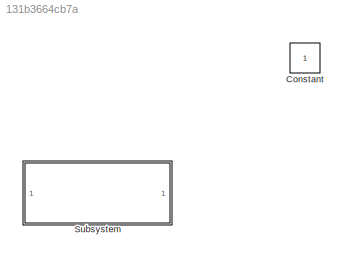
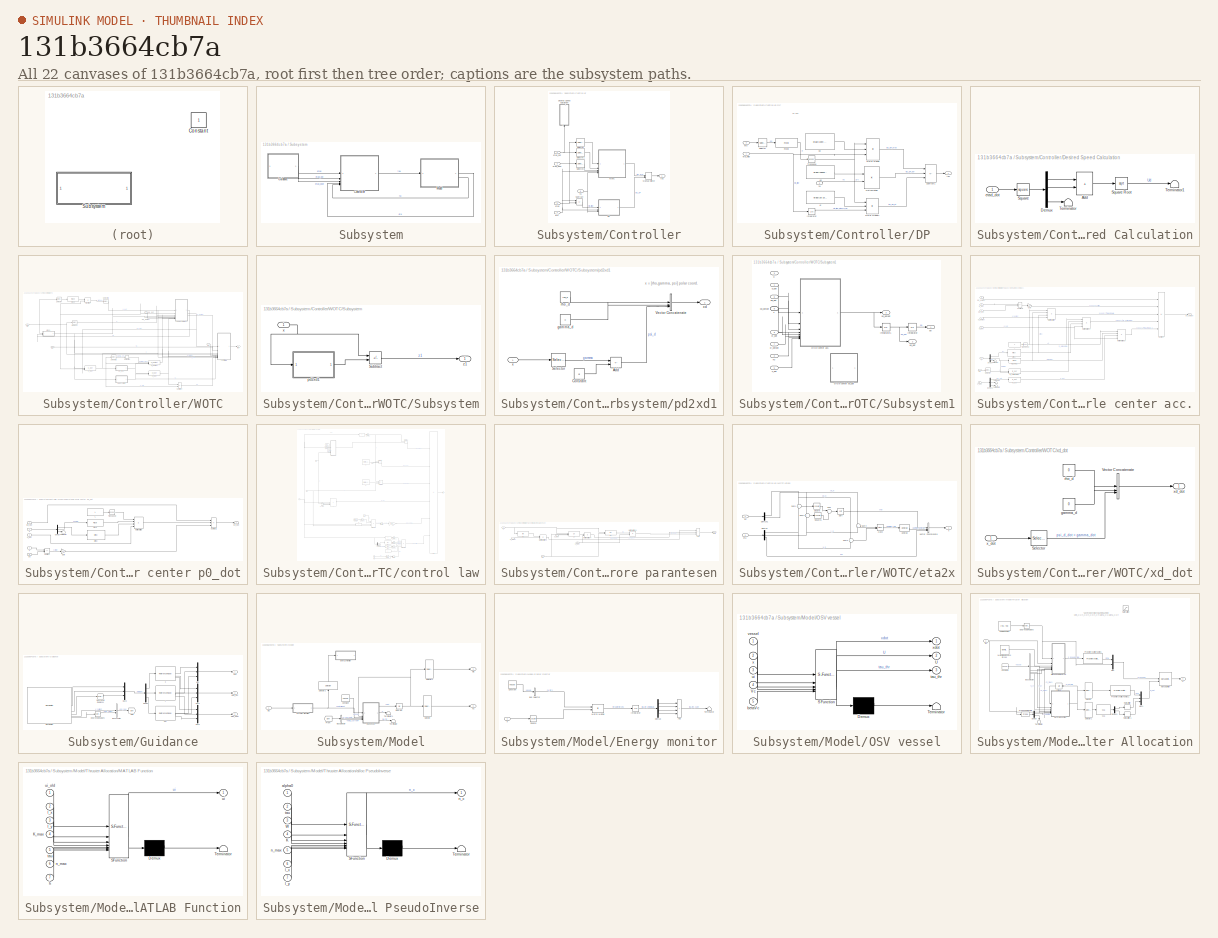
[diagram: thumbnail index - all 22 canvases of the model, root first then tree order]
MODEL slx_131b3664cb7a
KIND model
CONFIG AbsTol = auto
CONFIG EnableMultiTasking = off
CONFIG FixedStep = auto
CONFIG InitFcn = % Clear all variables from the workspace to ensure a clean start\nclearvars;\n\n% Run the setup script to load fresh parameters\nrun('models/osvData.m'); \n\n% Print a message to the command window to confirm\ndisp('Workspace cleared and initial variables loaded.');
CONFIG MaxStep = auto
CONFIG MinStep = auto
CONFIG RelTol = 1e-3
CONFIG SampleTimeConstraint = Unconstrained
CONFIG SolverName = ode45
CONFIG StartTime = 0.0
CONFIG StopFcn = % Folder name\nsaveFolder = 'output data/';\ntimestamp = string(datetime('now', 'Format', 'yyyyMMdd_HHmmss'));\n\n%make folder for simulation run data\nmkdir(saveFolder + timestamp);\n\nfilePath = saveFolder + timestamp + "/" + timestamp + ".mat";\n\n% 3. SAVE the file to the specified location\nsave(filePath, 'out'); \n\ndisp(['Simulation data saved to: ' filePath]);\n\n
CONFIG StopTime = 5000.0
BLOCK [Constant] Constant
  IOType = siggen
BLOCK [SubSystem] Subsystem
  LoadFcn = osvData;
BLOCK [SubSystem] Subsystem/Controller
BLOCK [SubSystem] Subsystem/Controller/DP
BLOCK [Integrator] Subsystem/Controller/DP/Integrator
  InitialCondition = [0 0 0]'
BLOCK [Constant] Subsystem/Controller/DP/Kd
  Value = diag([180e3 400e3 10e9])
BLOCK [Constant] Subsystem/Controller/DP/Ki
  Value = diag([20 100 100])
BLOCK [Constant] Subsystem/Controller/DP/Kp
  Value = diag([10e3 30e3 1e9])
BLOCK [Product] Subsystem/Controller/DP/Matrix Multiply
  Inputs = 3
  Multiplication = Matrix(*)
BLOCK [Product] Subsystem/Controller/DP/Matrix Multiply1
  Inputs = 3
  Multiplication = Matrix(*)
BLOCK [Product] Subsystem/Controller/DP/MatrixMultiply
  Multiplication = Matrix(*)
BLOCK [Reference] Subsystem/Controller/DP/R(psi)  REF=wopc_lib/R(psi)  (lib defined in slx_ff87c646ac9c)
  SourceBlock = wopc_lib/R(psi)
  SourceType = SubSystem
BLOCK [Selector] Subsystem/Controller/DP/Selector
  IndexOptions = Index vector (dialog)
  Indices = [3]
  InputPortWidth = 3
  OutputSizes = 1
BLOCK [Sum] Subsystem/Controller/DP/Subtract1
  IconShape = rectangular
  Inputs = ---
BLOCK [Math] Subsystem/Controller/DP/Transpose
  Operator = transpose
BLOCK [Inport] Subsystem/Controller/DP/eta
  Port = 2
BLOCK [Inport] Subsystem/Controller/DP/eta_tilde
BLOCK [Inport] Subsystem/Controller/DP/nu
  Port = 3
BLOCK [Outport] Subsystem/Controller/DP/tau
BLOCK [SubSystem] Subsystem/Controller/Desired Speed Calculation
  NameLocation = right
BLOCK [Sum] Subsystem/Controller/Desired Speed Calculation/Add
  IconShape = rectangular
BLOCK [Demux] Subsystem/Controller/Desired Speed Calculation/Demux
  Outputs = 3
BLOCK [Math] Subsystem/Controller/Desired Speed Calculation/Square
  Operator = square
BLOCK [Sqrt] Subsystem/Controller/Desired Speed Calculation/Square Root
BLOCK [Terminator] Subsystem/Controller/Desired Speed Calculation/Terminator
BLOCK [Terminator] Subsystem/Controller/Desired Speed Calculation/Terminator1
BLOCK [Inport] Subsystem/Controller/Desired Speed Calculation/etad_dot
BLOCK [ManualSwitch] Subsystem/Controller/Manual Switch
BLOCK [Selector] Subsystem/Controller/Selector
  IndexOptions = Index vector (dialog)
  Indices = [1 2]
  InputPortWidth = 3
  OutputSizes = 1
BLOCK [Selector] Subsystem/Controller/Selector1
  IndexOptions = Index vector (dialog)
  Indices = [1 2]
  InputPortWidth = 3
  OutputSizes = 1
BLOCK [Selector] Subsystem/Controller/Selector2
  IndexOptions = Index vector (dialog)
  Indices = [1 2]
  InputPortWidth = 3
  OutputSizes = 1
BLOCK [Sum] Subsystem/Controller/Subtract
  IconShape = rectangular
  Inputs = +-
BLOCK [SubSystem] Subsystem/Controller/WOTC
BLOCK [Derivative] Subsystem/Controller/WOTC/Derivative
BLOCK [Selector] Subsystem/Controller/WOTC/NED pos
  IndexOptions = Index vector (dialog)
  Indices = [1 2]
  InputPortWidth = 3
  OutputSizes = 1
BLOCK [Reference] Subsystem/Controller/WOTC/R(psi)  REF=wopc_lib/R(psi)  (lib defined in slx_ff87c646ac9c)
  SourceBlock = wopc_lib/R(psi)
  SourceType = SubSystem
BLOCK [Product] Subsystem/Controller/WOTC/R(psi)*nu
  Multiplication = Matrix(*)
BLOCK [Selector] Subsystem/Controller/WOTC/Selector
  IndexOptions = Index vector (dialog)
  Indices = 3
  InputPortWidth = 3
  OutputSizes = 1
BLOCK [Selector] Subsystem/Controller/WOTC/Selector1
  IndexOptions = Index vector (dialog)
  Indices = [1 2]
  InputPortWidth = 3
  OutputSizes = 1
BLOCK [Selector] Subsystem/Controller/WOTC/Selector2
  IndexOptions = Index vector (dialog)
  Indices = 2
  InputPortWidth = 3
  OutputSizes = 1
BLOCK [SubSystem] Subsystem/Controller/WOTC/Subsystem
BLOCK [Sum] Subsystem/Controller/WOTC/Subsystem/Subtract
  IconShape = rectangular
  Inputs = +-
BLOCK [SubSystem] Subsystem/Controller/WOTC/Subsystem/pd2xd1
  AncestorBlock = wopc_lib/pd2xd
BLOCK [Sum] Subsystem/Controller/WOTC/Subsystem/pd2xd1/Add
  IconShape = rectangular
  Inputs = +-
BLOCK [Constant] Subsystem/Controller/WOTC/Subsystem/pd2xd1/Constant
  Value = pi
BLOCK [Selector] Subsystem/Controller/WOTC/Subsystem/pd2xd1/Selector
  IndexOptions = Index vector (dialog)
  Indices = 2
  InputPortWidth = 3
  OutputSizes = 1
BLOCK [Concatenate] Subsystem/Controller/WOTC/Subsystem/pd2xd1/Vector Concatenate
  NumInputs = 3
BLOCK [Constant] Subsystem/Controller/WOTC/Subsystem/pd2xd1/gamma_d
  Value = 0
BLOCK [Constant] Subsystem/Controller/WOTC/Subsystem/pd2xd1/rho_d
  Value = rho_d
BLOCK [Inport] Subsystem/Controller/WOTC/Subsystem/pd2xd1/x
BLOCK [Outport] Subsystem/Controller/WOTC/Subsystem/pd2xd1/xd
BLOCK [Inport] Subsystem/Controller/WOTC/Subsystem/x
BLOCK [Outport] Subsystem/Controller/WOTC/Subsystem/z1
BLOCK [SubSystem] Subsystem/Controller/WOTC/Subsystem1
BLOCK [Integrator] Subsystem/Controller/WOTC/Subsystem1/Integrator
  InitialCondition = [eta0(1) + rho_d *cos(eta0(3));eta0(2)+rho_d*sin(eta0(3))]
BLOCK [Integrator] Subsystem/Controller/WOTC/Subsystem1/Integrator1
  InitialCondition = [0;0]
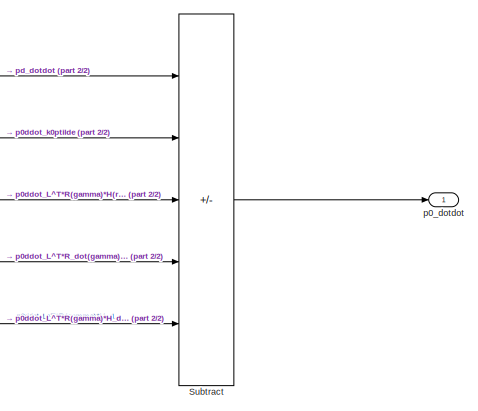
[diagram: Subsystem/Controller/WOTC/Subsystem1/circle center acc. - part 1/2, top right region]
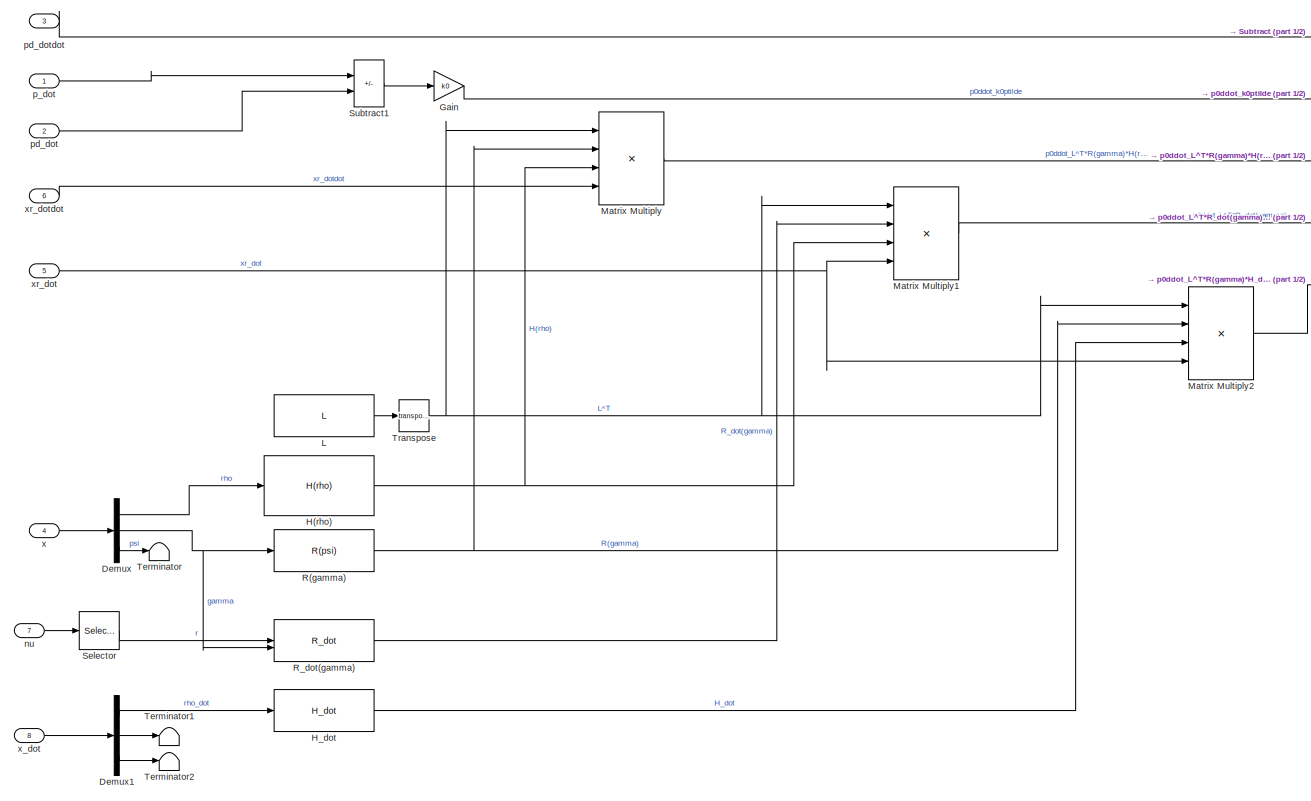
[diagram: Subsystem/Controller/WOTC/Subsystem1/circle center acc. - part 2/2, center side, full height]
BLOCK [SubSystem] Subsystem/Controller/WOTC/Subsystem1/circle center acc.
BLOCK [Demux] Subsystem/Controller/WOTC/Subsystem1/circle center acc./Demux
  Outputs = 3
BLOCK [Demux] Subsystem/Controller/WOTC/Subsystem1/circle center acc./Demux1
  Outputs = 3
BLOCK [Gain] Subsystem/Controller/WOTC/Subsystem1/circle center acc./Gain
  Gain = k0
BLOCK [Reference] Subsystem/Controller/WOTC/Subsystem1/circle center acc./H(rho)  REF=wopc_lib/H(rho)  (lib defined in slx_ff87c646ac9c)
  SourceBlock = wopc_lib/H(rho)
  SourceType = SubSystem
BLOCK [Reference] Subsystem/Controller/WOTC/Subsystem1/circle center acc./H_dot  REF=wopc_lib/H_dot  (lib defined in slx_ff87c646ac9c)
  SourceBlock = wopc_lib/H_dot
  SourceType = SubSystem
BLOCK [Reference] Subsystem/Controller/WOTC/Subsystem1/circle center acc./L  REF=wopc_lib/L  (lib defined in slx_ff87c646ac9c)
  SourceBlock = wopc_lib/L
  SourceType = SubSystem
BLOCK [Product] Subsystem/Controller/WOTC/Subsystem1/circle center acc./Matrix Multiply
  Inputs = 4
  Multiplication = Matrix(*)
BLOCK [Product] Subsystem/Controller/WOTC/Subsystem1/circle center acc./Matrix Multiply1
  Inputs = 4
  Multiplication = Matrix(*)
BLOCK [Product] Subsystem/Controller/WOTC/Subsystem1/circle center acc./Matrix Multiply2
  Inputs = 4
  Multiplication = Matrix(*)
BLOCK [Reference] Subsystem/Controller/WOTC/Subsystem1/circle center acc./R(gamma)  REF=wopc_lib/R(psi)  (lib defined in slx_ff87c646ac9c)
  SourceBlock = wopc_lib/R(psi)
  SourceType = SubSystem
BLOCK [Reference] Subsystem/Controller/WOTC/Subsystem1/circle center acc./R_dot(gamma)  REF=wopc_lib/R_dot  (lib defined in slx_ff87c646ac9c)
  SourceBlock = wopc_lib/R_dot
  SourceType = SubSystem
BLOCK [Selector] Subsystem/Controller/WOTC/Subsystem1/circle center acc./Selector
  IndexOptions = Index vector (dialog)
  Indices = 3
  InputPortWidth = 3
  OutputSizes = 1
BLOCK [Sum] Subsystem/Controller/WOTC/Subsystem1/circle center acc./Subtract
  IconShape = rectangular
  Inputs = +----
BLOCK [Sum] Subsystem/Controller/WOTC/Subsystem1/circle center acc./Subtract1
  IconShape = rectangular
  Inputs = +-
BLOCK [Terminator] Subsystem/Controller/WOTC/Subsystem1/circle center acc./Terminator
BLOCK [Terminator] Subsystem/Controller/WOTC/Subsystem1/circle center acc./Terminator1
BLOCK [Terminator] Subsystem/Controller/WOTC/Subsystem1/circle center acc./Terminator2
BLOCK [Math] Subsystem/Controller/WOTC/Subsystem1/circle center acc./Transpose
  Operator = transpose
BLOCK [Inport] Subsystem/Controller/WOTC/Subsystem1/circle center acc./nu
  Port = 7
BLOCK [Outport] Subsystem/Controller/WOTC/Subsystem1/circle center acc./p0_dotdot
BLOCK [Inport] Subsystem/Controller/WOTC/Subsystem1/circle center acc./p_dot
BLOCK [Inport] Subsystem/Controller/WOTC/Subsystem1/circle center acc./pd_dot
  Port = 2
BLOCK [Inport] Subsystem/Controller/WOTC/Subsystem1/circle center acc./pd_dotdot
  Port = 3
BLOCK [Inport] Subsystem/Controller/WOTC/Subsystem1/circle center acc./x
  Port = 4
BLOCK [Inport] Subsystem/Controller/WOTC/Subsystem1/circle center acc./x_dot
  Port = 8
BLOCK [Inport] Subsystem/Controller/WOTC/Subsystem1/circle center acc./xr_dot
  Port = 5
BLOCK [Inport] Subsystem/Controller/WOTC/Subsystem1/circle center acc./xr_dotdot
  Port = 6
BLOCK [SubSystem] Subsystem/Controller/WOTC/Subsystem1/circle center p0_dot
  Commented = on
BLOCK [Demux] Subsystem/Controller/WOTC/Subsystem1/circle center p0_dot/Demux
  Outputs = 3
BLOCK [Gain] Subsystem/Controller/WOTC/Subsystem1/circle center p0_dot/Gain
  Gain = k0
BLOCK [Reference] Subsystem/Controller/WOTC/Subsystem1/circle center p0_dot/H(rho)  REF=wopc_lib/H(rho)  (lib defined in slx_ff87c646ac9c)
  SourceBlock = wopc_lib/H(rho)
  SourceType = SubSystem
BLOCK [Reference] Subsystem/Controller/WOTC/Subsystem1/circle center p0_dot/L  REF=wopc_lib/L  (lib defined in slx_ff87c646ac9c)
  SourceBlock = wopc_lib/L
  SourceType = SubSystem
BLOCK [Product] Subsystem/Controller/WOTC/Subsystem1/circle center p0_dot/Matrix Multiply
  Inputs = 4
  Multiplication = Matrix(*)
BLOCK [Reference] Subsystem/Controller/WOTC/Subsystem1/circle center p0_dot/R(psi)  REF=wopc_lib/R(psi)  (lib defined in slx_ff87c646ac9c)
  SourceBlock = wopc_lib/R(psi)
  SourceType = SubSystem
BLOCK [Sum] Subsystem/Controller/WOTC/Subsystem1/circle center p0_dot/Subtract
  IconShape = rectangular
  Inputs = +-
BLOCK [Sum] Subsystem/Controller/WOTC/Subsystem1/circle center p0_dot/Subtract1
  IconShape = rectangular
  Inputs = +--
BLOCK [Terminator] Subsystem/Controller/WOTC/Subsystem1/circle center p0_dot/Terminator
BLOCK [Math] Subsystem/Controller/WOTC/Subsystem1/circle center p0_dot/Transpose
  Operator = transpose
BLOCK [Inport] Subsystem/Controller/WOTC/Subsystem1/circle center p0_dot/p
  Port = 4
BLOCK [Outport] Subsystem/Controller/WOTC/Subsystem1/circle center p0_dot/p0_dot
BLOCK [Inport] Subsystem/Controller/WOTC/Subsystem1/circle center p0_dot/pd
  Port = 5
BLOCK [Inport] Subsystem/Controller/WOTC/Subsystem1/circle center p0_dot/pd_dot
BLOCK [Inport] Subsystem/Controller/WOTC/Subsystem1/circle center p0_dot/x
  Port = 2
BLOCK [Inport] Subsystem/Controller/WOTC/Subsystem1/circle center p0_dot/xr_dot
  Port = 3
BLOCK [Inport] Subsystem/Controller/WOTC/Subsystem1/nu
  Port = 2
BLOCK [Inport] Subsystem/Controller/WOTC/Subsystem1/p
  Port = 3
BLOCK [Outport] Subsystem/Controller/WOTC/Subsystem1/p0
BLOCK [Outport] Subsystem/Controller/WOTC/Subsystem1/p0_dot
  Port = 2
BLOCK [Outport] Subsystem/Controller/WOTC/Subsystem1/p0_dotdot
  Port = 3
BLOCK [Inport] Subsystem/Controller/WOTC/Subsystem1/p_dot
BLOCK [Inport] Subsystem/Controller/WOTC/Subsystem1/pd_dot
  Port = 6
BLOCK [Inport] Subsystem/Controller/WOTC/Subsystem1/pd_dotdot
  Port = 8
BLOCK [Inport] Subsystem/Controller/WOTC/Subsystem1/x
  Port = 4
BLOCK [Inport] Subsystem/Controller/WOTC/Subsystem1/x_dot
  Port = 5
BLOCK [Inport] Subsystem/Controller/WOTC/Subsystem1/xr_dot
  Port = 9
BLOCK [Inport] Subsystem/Controller/WOTC/Subsystem1/xr_dotdot
  Port = 7
BLOCK [Sum] Subsystem/Controller/WOTC/Subtract
  IconShape = rectangular
  Inputs = -+
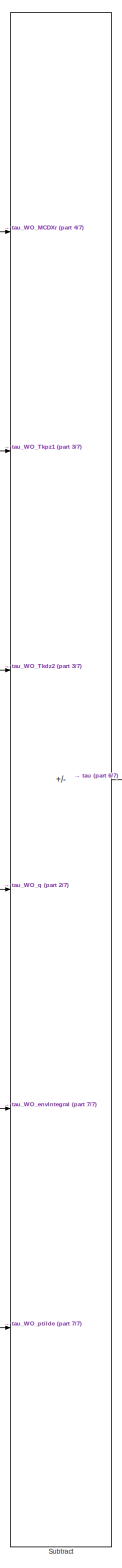
[diagram: Subsystem/Controller/WOTC/control law - part 1/7, right side, full height]
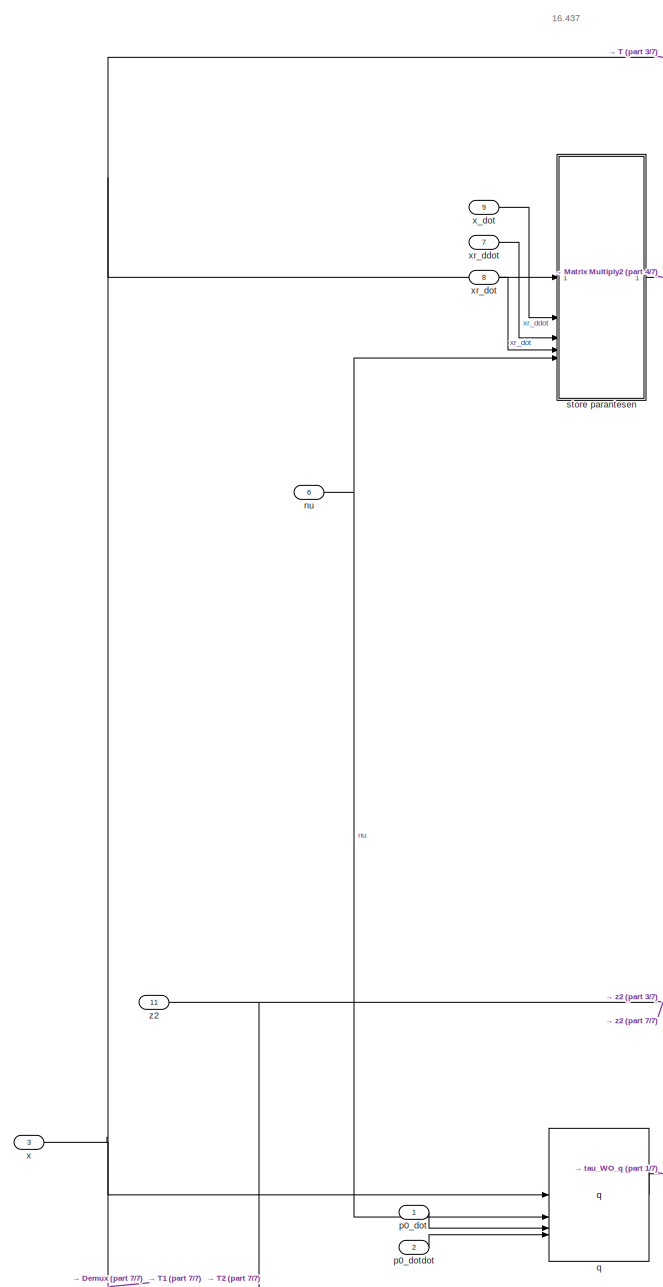
[diagram: Subsystem/Controller/WOTC/control law - part 2/7, top left region]
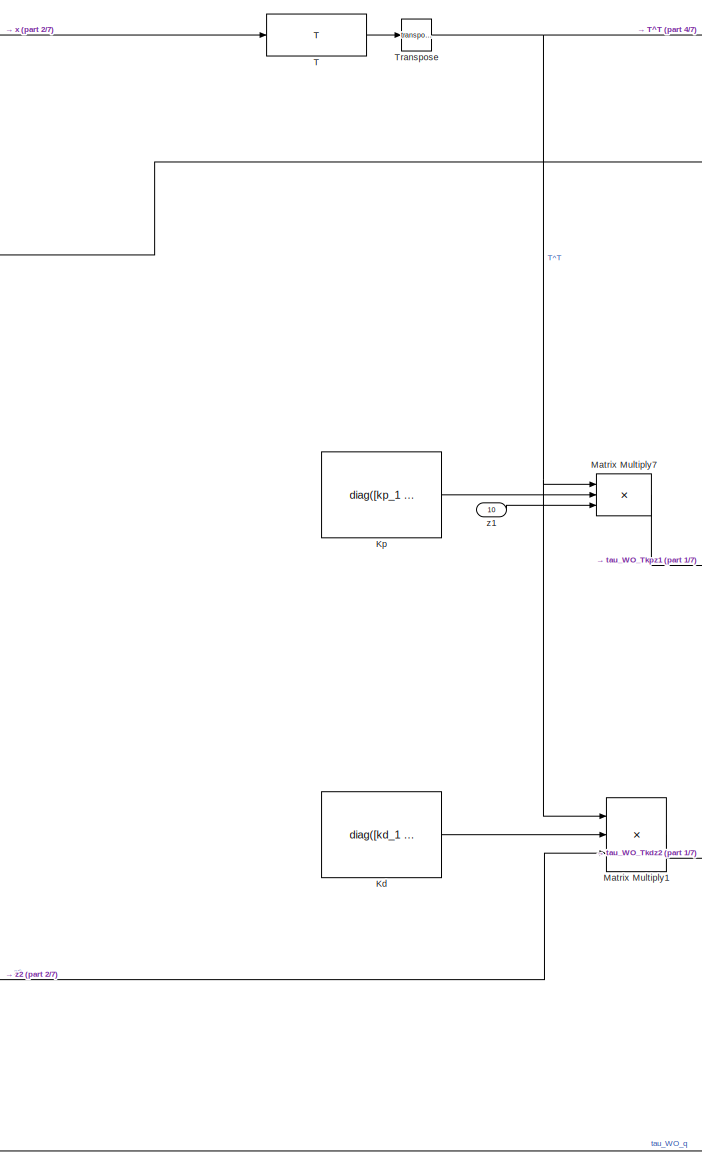
[diagram: Subsystem/Controller/WOTC/control law - part 3/7, top center region]
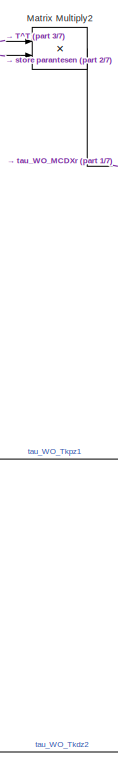
[diagram: Subsystem/Controller/WOTC/control law - part 4/7, top right region]
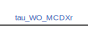
[diagram: Subsystem/Controller/WOTC/control law - part 5/7, top right region]
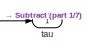
[diagram: Subsystem/Controller/WOTC/control law - part 6/7, middle right region]
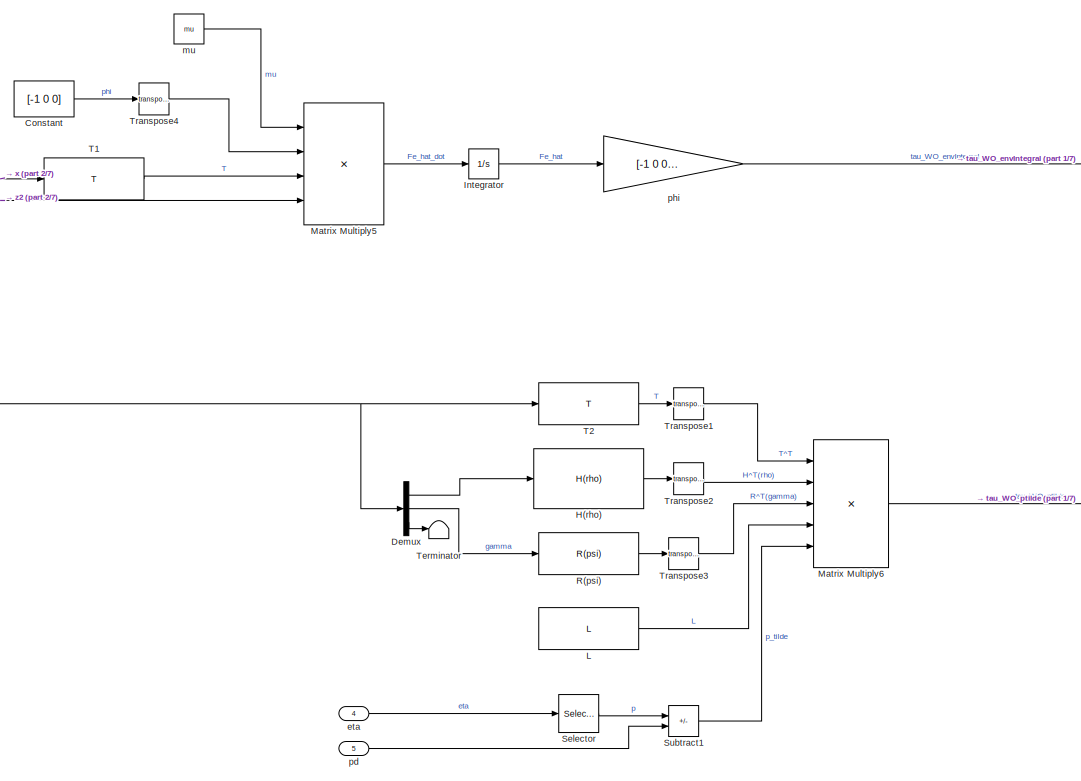
[diagram: Subsystem/Controller/WOTC/control law - part 7/7, bottom center region]
BLOCK [SubSystem] Subsystem/Controller/WOTC/control law
BLOCK [Constant] Subsystem/Controller/WOTC/control law/Constant
  Value = [-1 0 0]
BLOCK [Demux] Subsystem/Controller/WOTC/control law/Demux
  Outputs = 3
BLOCK [Reference] Subsystem/Controller/WOTC/control law/H(rho)  REF=wopc_lib/H(rho)  (lib defined in slx_ff87c646ac9c)
  SourceBlock = wopc_lib/H(rho)
  SourceType = SubSystem
BLOCK [Integrator] Subsystem/Controller/WOTC/control law/Integrator
BLOCK [Constant] Subsystem/Controller/WOTC/control law/Kd
  Value = diag([kd_1 kd_2 kd_3])
BLOCK [Constant] Subsystem/Controller/WOTC/control law/Kp
  Value = diag([kp_1 0 kp_3])
BLOCK [Reference] Subsystem/Controller/WOTC/control law/L  REF=wopc_lib/L  (lib defined in slx_ff87c646ac9c)
  SourceBlock = wopc_lib/L
  SourceType = SubSystem
BLOCK [Product] Subsystem/Controller/WOTC/control law/Matrix Multiply1
  Inputs = 3
  Multiplication = Matrix(*)
BLOCK [Product] Subsystem/Controller/WOTC/control law/Matrix Multiply2
  Multiplication = Matrix(*)
BLOCK [Product] Subsystem/Controller/WOTC/control law/Matrix Multiply5
  Inputs = **/*
  Multiplication = Matrix(*)
BLOCK [Product] Subsystem/Controller/WOTC/control law/Matrix Multiply6
  Inputs = 5
  Multiplication = Matrix(*)
BLOCK [Product] Subsystem/Controller/WOTC/control law/Matrix Multiply7
  Inputs = 3
  Multiplication = Matrix(*)
BLOCK [Reference] Subsystem/Controller/WOTC/control law/R(psi)  REF=wopc_lib/R(psi)  (lib defined in slx_ff87c646ac9c)
  SourceBlock = wopc_lib/R(psi)
  SourceType = SubSystem
BLOCK [Selector] Subsystem/Controller/WOTC/control law/Selector
  IndexOptions = Index vector (dialog)
  Indices = [1 2]
  InputPortWidth = 3
  OutputSizes = 1
BLOCK [Sum] Subsystem/Controller/WOTC/control law/Subtract
  IconShape = rectangular
  Inputs = +-----
BLOCK [Sum] Subsystem/Controller/WOTC/control law/Subtract1
  IconShape = rectangular
  Inputs = +-
BLOCK [Reference] Subsystem/Controller/WOTC/control law/T  REF=wopc_lib/T  (lib defined in slx_ff87c646ac9c)
  SourceBlock = wopc_lib/T
  SourceType = SubSystem
BLOCK [Reference] Subsystem/Controller/WOTC/control law/T1  REF=wopc_lib/T  (lib defined in slx_ff87c646ac9c)
  SourceBlock = wopc_lib/T
  SourceType = SubSystem
BLOCK [Reference] Subsystem/Controller/WOTC/control law/T2  REF=wopc_lib/T  (lib defined in slx_ff87c646ac9c)
  SourceBlock = wopc_lib/T
  SourceType = SubSystem
BLOCK [Terminator] Subsystem/Controller/WOTC/control law/Terminator
BLOCK [Math] Subsystem/Controller/WOTC/control law/Transpose
  Operator = transpose
BLOCK [Math] Subsystem/Controller/WOTC/control law/Transpose1
  Operator = transpose
BLOCK [Math] Subsystem/Controller/WOTC/control law/Transpose2
  Operator = transpose
BLOCK [Math] Subsystem/Controller/WOTC/control law/Transpose3
  Operator = transpose
BLOCK [Math] Subsystem/Controller/WOTC/control law/Transpose4
  Operator = transpose
BLOCK [Inport] Subsystem/Controller/WOTC/control law/eta
  Port = 4
BLOCK [Constant] Subsystem/Controller/WOTC/control law/mu
  Value = mu
BLOCK [Inport] Subsystem/Controller/WOTC/control law/nu
  Port = 6
BLOCK [Inport] Subsystem/Controller/WOTC/control law/p0_dot
BLOCK [Inport] Subsystem/Controller/WOTC/control law/p0_dotdot
  Port = 2
BLOCK [Inport] Subsystem/Controller/WOTC/control law/pd
  Port = 5
BLOCK [Gain] Subsystem/Controller/WOTC/control law/phi
  Gain = [-1 0 0]'
BLOCK [Reference] Subsystem/Controller/WOTC/control law/q  REF=wopc_lib/q  (lib defined in slx_ff87c646ac9c)
  AttributesFormatString = Bidrag fra flytting av sirkelsentrum p0\nkompenserer for dette
  SourceBlock = wopc_lib/q
  SourceType = SubSystem
BLOCK [SubSystem] Subsystem/Controller/WOTC/control law/store parantesen
BLOCK [Sum] Subsystem/Controller/WOTC/control law/store parantesen/Add
  IconShape = rectangular
  Inputs = +++
BLOCK [Reference] Subsystem/Controller/WOTC/control law/store parantesen/Cx  REF=wopc_lib/Cx  (lib defined in slx_ff87c646ac9c)
  SourceBlock = wopc_lib/Cx
  SourceType = SubSystem
BLOCK [Reference] Subsystem/Controller/WOTC/control law/store parantesen/Dx  REF=wopc_lib/Dx  (lib defined in slx_ff87c646ac9c)
  SourceBlock = wopc_lib/Dx
  SourceType = SubSystem
BLOCK [Product] Subsystem/Controller/WOTC/control law/store parantesen/Matrix Multiply3
  Multiplication = Matrix(*)
BLOCK [Product] Subsystem/Controller/WOTC/control law/store parantesen/Matrix Multiply4
  Multiplication = Matrix(*)
BLOCK [Product] Subsystem/Controller/WOTC/control law/store parantesen/Matrix Multiply8
  Multiplication = Matrix(*)
BLOCK [Reference] Subsystem/Controller/WOTC/control law/store parantesen/Mx  REF=wopc_lib/Mx  (lib defined in slx_ff87c646ac9c)
  SourceBlock = wopc_lib/Mx
  SourceType = SubSystem
BLOCK [Outport] Subsystem/Controller/WOTC/control law/store parantesen/Out1
BLOCK [Inport] Subsystem/Controller/WOTC/control law/store parantesen/nu
  Port = 5
BLOCK [Inport] Subsystem/Controller/WOTC/control law/store parantesen/x
BLOCK [Inport] Subsystem/Controller/WOTC/control law/store parantesen/x_dot
  Port = 2
BLOCK [Inport] Subsystem/Controller/WOTC/control law/store parantesen/xr_ddot
  Port = 3
BLOCK [Inport] Subsystem/Controller/WOTC/control law/store parantesen/xr_dot
  Port = 4
BLOCK [Outport] Subsystem/Controller/WOTC/control law/tau
BLOCK [Inport] Subsystem/Controller/WOTC/control law/x
  Port = 3
BLOCK [Inport] Subsystem/Controller/WOTC/control law/x_dot
  Port = 9
BLOCK [Inport] Subsystem/Controller/WOTC/control law/xr_ddot
  Port = 7
BLOCK [Inport] Subsystem/Controller/WOTC/control law/xr_dot
  Port = 8
BLOCK [Inport] Subsystem/Controller/WOTC/control law/z1
  Port = 10
BLOCK [Inport] Subsystem/Controller/WOTC/control law/z2
  Port = 11
BLOCK [Inport] Subsystem/Controller/WOTC/eta
  Port = 4
BLOCK [SubSystem] Subsystem/Controller/WOTC/eta2x
BLOCK [Trigonometry] Subsystem/Controller/WOTC/eta2x/Atan2
  Operator = atan2
BLOCK [Demux] Subsystem/Controller/WOTC/eta2x/Demux
  Outputs = 3
BLOCK [Demux] Subsystem/Controller/WOTC/eta2x/Demux1
  Outputs = 2
BLOCK [Sqrt] Subsystem/Controller/WOTC/eta2x/Sqrt
BLOCK [Math] Subsystem/Controller/WOTC/eta2x/Square
  Operator = square
BLOCK [Math] Subsystem/Controller/WOTC/eta2x/Square1
  Operator = square
BLOCK [Sum] Subsystem/Controller/WOTC/eta2x/Sum
  Inputs = |++
BLOCK [Sum] Subsystem/Controller/WOTC/eta2x/Sum1
  Inputs = -+
BLOCK [Sum] Subsystem/Controller/WOTC/eta2x/Sum2
  Inputs = -+
BLOCK [Sum] Subsystem/Controller/WOTC/eta2x/Sum3
  Inputs = -+
BLOCK [Sum] Subsystem/Controller/WOTC/eta2x/Sum4
  Inputs = -+
BLOCK [Reference] Subsystem/Controller/WOTC/eta2x/Unwrap  REF=dspsigops/Unwrap
  SourceBlock = dspsigops/Unwrap
  SourceType = Unwrap
  UserDataPersistent = on
BLOCK [Concatenate] Subsystem/Controller/WOTC/eta2x/Vector Concatenate
  NumInputs = 3
BLOCK [Inport] Subsystem/Controller/WOTC/eta2x/eta
BLOCK [Inport] Subsystem/Controller/WOTC/eta2x/p0
  Port = 2
BLOCK [Outport] Subsystem/Controller/WOTC/eta2x/x
BLOCK [Inport] Subsystem/Controller/WOTC/nu
  Port = 5
  PortDimensions = 3
BLOCK [Inport] Subsystem/Controller/WOTC/pd
BLOCK [Inport] Subsystem/Controller/WOTC/pd_dot
  Port = 2
BLOCK [Inport] Subsystem/Controller/WOTC/pd_dotdot
  Port = 3
BLOCK [Outport] Subsystem/Controller/WOTC/tau
BLOCK [Reference] Subsystem/Controller/WOTC/x_dot  REF=wopc_lib/x_dot  (lib defined in slx_ff87c646ac9c)
  SourceBlock = wopc_lib/x_dot
  SourceType = SubSystem
BLOCK [SubSystem] Subsystem/Controller/WOTC/xd_dot
BLOCK [Selector] Subsystem/Controller/WOTC/xd_dot/Selector
  IndexOptions = Index vector (dialog)
  Indices = 2
  InputPortWidth = 3
  OutputSizes = 1
BLOCK [Concatenate] Subsystem/Controller/WOTC/xd_dot/Vector Concatenate
  NumInputs = 3
BLOCK [Constant] Subsystem/Controller/WOTC/xd_dot/gamma_d
  Value = 0
BLOCK [Constant] Subsystem/Controller/WOTC/xd_dot/rho_d
  Value = 0
BLOCK [Inport] Subsystem/Controller/WOTC/xd_dot/x_dot
BLOCK [Outport] Subsystem/Controller/WOTC/xd_dot/xd_dot
BLOCK [Reference] Subsystem/Controller/WOTC/xr_dot  REF=wopc_lib/xr_dot  (lib defined in slx_ff87c646ac9c)
  SourceBlock = wopc_lib/xr_dot
  SourceType = SubSystem
BLOCK [Reference] Subsystem/Controller/WOTC/xr_dotdot  REF=wopc_lib/xr_dotdot  (lib defined in slx_ff87c646ac9c)
  SourceBlock = wopc_lib/xr_dotdot
  SourceType = SubSystem
BLOCK [Inport] Subsystem/Controller/eta
  Port = 4
BLOCK [Inport] Subsystem/Controller/etad
BLOCK [Inport] Subsystem/Controller/etad_ddot
  Port = 3
BLOCK [Inport] Subsystem/Controller/etad_dot
  Port = 2
BLOCK [Inport] Subsystem/Controller/nu
  Port = 5
BLOCK [Outport] Subsystem/Controller/tau
BLOCK [SubSystem] Subsystem/Guidance
BLOCK [BusCreator] Subsystem/Guidance/Bus Creator
  DisplayOption = bar
  InheritFromInputs = on
  Inputs = 2
BLOCK [Reference] Subsystem/Guidance/Degrees to Radians  REF=simulink_extras/Transformations/Degrees to
Radians
  SourceBlock = simulink_extras/Transformations/Degrees to\nRadians
  SourceType = DegreesToRadians
BLOCK [Reference] Subsystem/Guidance/Degrees to Radians1  REF=simulink_extras/Transformations/Degrees to
Radians
  SourceBlock = simulink_extras/Transformations/Degrees to\nRadians
  SourceType = DegreesToRadians
BLOCK [Demux] Subsystem/Guidance/Demux
  Outputs = 3
BLOCK [Goto] Subsystem/Guidance/Goto
  GotoTag = Env
  TagVisibility = global
BLOCK [Mux] Subsystem/Guidance/Mux
  DisplayOption = bar
  Inputs = 3
BLOCK [Mux] Subsystem/Guidance/Mux1
  DisplayOption = bar
  Inputs = 3
BLOCK [Mux] Subsystem/Guidance/Mux2
  DisplayOption = bar
  Inputs = 3
BLOCK [Mux] Subsystem/Guidance/Mux3
  DisplayOption = bar
  Inputs = 3
BLOCK [Reference] Subsystem/Guidance/Signal Editor  REF=SignalEditorBlockLib/Signal Editor
  LibrarySourceBlock = simulink/Sources/Signal Editor
  SourceBlock = SignalEditorBlockLib/Signal Editor
  SourceType = SignalEditor
  UserDataPersistent = on
BLOCK [Outport] Subsystem/Guidance/etad
BLOCK [Outport] Subsystem/Guidance/etad_ddot
  Port = 3
BLOCK [Outport] Subsystem/Guidance/etad_dot
  Port = 2
BLOCK [Reference] Subsystem/Guidance/psi  REF=mssSimulink/Guidance/Reference model
  SourceBlock = mssSimulink/Guidance/Reference model
  SourceProductName = mss Toolbox
  SourceType = 3rd-order reference model
BLOCK [Reference] Subsystem/Guidance/x  REF=mssSimulink/Guidance/Reference model
  SourceBlock = mssSimulink/Guidance/Reference model
  SourceProductName = mss Toolbox
  SourceType = 3rd-order reference model
BLOCK [Reference] Subsystem/Guidance/y  REF=mssSimulink/Guidance/Reference model
  SourceBlock = mssSimulink/Guidance/Reference model
  SourceProductName = mss Toolbox
  SourceType = 3rd-order reference model
BLOCK [SubSystem] Subsystem/Model
BLOCK [BusSelector] Subsystem/Model/Bus Selector
  OutputSignals = V_current,beta_current
BLOCK [Constant] Subsystem/Model/Constant
  OutDataTypeStr = Bus: slBus1
  Value = vessel
BLOCK [SubSystem] Subsystem/Model/Energy monitor
BLOCK [Sum] Subsystem/Model/Energy monitor/Add
  IconShape = rectangular
  Inputs = ++++
BLOCK [BusSelector] Subsystem/Model/Energy monitor/Bus Selector
  OutputSignals = K_thr
BLOCK [Constant] Subsystem/Model/Energy monitor/Constant
  OutDataTypeStr = Bus: slBus1
  Value = vessel
BLOCK [Demux] Subsystem/Model/Energy monitor/Demux
BLOCK [Integrator] Subsystem/Model/Energy monitor/Integrator
  InitialCondition = [0 0 0 0]'
BLOCK [Product] Subsystem/Model/Energy monitor/Matrix Multiply
  Multiplication = Matrix(*)
BLOCK [Math] Subsystem/Model/Energy monitor/Square
  Operator = square
BLOCK [Terminator] Subsystem/Model/Energy monitor/Terminator
BLOCK [Inport] Subsystem/Model/Energy monitor/n
BLOCK [From] Subsystem/Model/From
  GotoTag = Env
  TagVisibility = global
BLOCK [Integrator] Subsystem/Model/Integrator
  InitialCondition = [0 0 0 0 0 0 eta0(1) eta0(2) 0 0 0 eta0(3)]'
BLOCK [SubSystem] Subsystem/Model/OSV vessel
  ErrorFcn = Stateflow.Translate.translate
  PermitHierarchicalResolution = ExplicitOnly
  SFBlockType = MATLAB Function
  TreatAsAtomicUnit = on
BLOCK [Demux] Subsystem/Model/OSV vessel/ Demux 
  Outputs = 1
BLOCK [S-Function] Subsystem/Model/OSV vessel/ SFunction 
  EnableBusSupport = on
  FunctionName = sf_sfun
  PortCounts = [5 4]
  SFcnIsStateOwnerBlock = off
  SFunctionDeploymentMode = off
  Tag = Stateflow S-Function 3
BLOCK [Terminator] Subsystem/Model/OSV vessel/ Terminator 
BLOCK [Outport] Subsystem/Model/OSV vessel/U
  Port = 2
BLOCK [Inport] Subsystem/Model/OSV vessel/Vc
  Port = 4
BLOCK [Inport] Subsystem/Model/OSV vessel/betaVc
  Port = 5
BLOCK [Outport] Subsystem/Model/OSV vessel/tau_thr
  Port = 3
BLOCK [Inport] Subsystem/Model/OSV vessel/ui
  Port = 3
BLOCK [Inport] Subsystem/Model/OSV vessel/vessel
BLOCK [Inport] Subsystem/Model/OSV vessel/x
  Port = 2
BLOCK [Outport] Subsystem/Model/OSV vessel/xdot
BLOCK [Selector] Subsystem/Model/Selector
  IndexOptions = Index vector (dialog)
  Indices = [1 2 6]
  InputPortWidth = 12
  OutputSizes = 1
BLOCK [Selector] Subsystem/Model/Selector1
  IndexOptions = Index vector (dialog)
  Indices = [7 8 12]
  InputPortWidth = 12
  OutputSizes = 1
BLOCK [Selector] Subsystem/Model/Selector2
  IndexOptions = Index vector (dialog)
  Indices = [1 2 3 4]
  InputPortWidth = 6
  NameLocation = right
  OutputSizes = 1
BLOCK [Terminator] Subsystem/Model/Terminator
BLOCK [Terminator] Subsystem/Model/Terminator1
BLOCK [SubSystem] Subsystem/Model/Thruster Allocation
BLOCK [BusSelector] Subsystem/Model/Thruster Allocation/Bus Selector
  OutputSignals = K_max,n_max,l_x,l_y
BLOCK [Constant] Subsystem/Model/Thruster Allocation/Constant1
  OutDataTypeStr = Bus: slBus1
  Value = vessel
BLOCK [Reference] Subsystem/Model/Thruster Allocation/Degrees to Radians  REF=simulink_extras/Transformations/Degrees to
Radians
  SourceBlock = simulink_extras/Transformations/Degrees to\nRadians
  SourceType = DegreesToRadians
BLOCK [Demux] Subsystem/Model/Thruster Allocation/Demux
  Commented = on
  Outputs = 2
BLOCK [Demux] Subsystem/Model/Thruster Allocation/Demux1
  Commented = on
  Outputs = 2
BLOCK [SubSystem] Subsystem/Model/Thruster Allocation/MATLAB Function
  Commented = on
  ErrorFcn = Stateflow.Translate.translate
  PermitHierarchicalResolution = ExplicitOnly
  SFBlockType = MATLAB Function
  TreatAsAtomicUnit = on
BLOCK [Demux] Subsystem/Model/Thruster Allocation/MATLAB Function/ Demux 
  Outputs = 1
BLOCK [S-Function] Subsystem/Model/Thruster Allocation/MATLAB Function/ SFunction 
  EnableBusSupport = on
  FunctionName = sf_sfun
  PortCounts = [7 2]
  SFcnIsStateOwnerBlock = off
  SFunctionDeploymentMode = off
  Tag = Stateflow S-Function 2
BLOCK [Terminator] Subsystem/Model/Thruster Allocation/MATLAB Function/ Terminator 
BLOCK [Inport] Subsystem/Model/Thruster Allocation/MATLAB Function/K_max
  Port = 4
BLOCK [Inport] Subsystem/Model/Thruster Allocation/MATLAB Function/h
  Port = 7
BLOCK [Inport] Subsystem/Model/Thruster Allocation/MATLAB Function/l_x
  Port = 2
BLOCK [Inport] Subsystem/Model/Thruster Allocation/MATLAB Function/l_y
  Port = 3
BLOCK [Inport] Subsystem/Model/Thruster Allocation/MATLAB Function/n_max
  Port = 6
BLOCK [Inport] Subsystem/Model/Thruster Allocation/MATLAB Function/tau
  Port = 5
BLOCK [Outport] Subsystem/Model/Thruster Allocation/MATLAB Function/ui
BLOCK [Inport] Subsystem/Model/Thruster Allocation/MATLAB Function/ui_old
BLOCK [ManualSwitch] Subsystem/Model/Thruster Allocation/Manual Switch
BLOCK [Mux] Subsystem/Model/Thruster Allocation/Mux
  DisplayOption = bar
  Inputs = 2
BLOCK [Mux] Subsystem/Model/Thruster Allocation/Mux1
  Commented = on
  DisplayOption = bar
  Inputs = 3
BLOCK [Probe] Subsystem/Model/Thruster Allocation/Probe Sample Time
  Commented = on
  ProbeComplexSignal = off
  ProbeWidth = off
BLOCK [Reference] Subsystem/Model/Thruster Allocation/Propeller shaft dynamics  REF=mssSimulink/Modelling/Propulsion/Propeller shaft dynamics
  SourceBlock = mssSimulink/Modelling/Propulsion/Propeller shaft dynamics
  SourceProductName = mss Toolbox
  SourceType = Propeller
BLOCK [Reference] Subsystem/Model/Thruster Allocation/Propeller shaft dynamics1  REF=mssSimulink/Modelling/Propulsion/Propeller shaft dynamics
  Commented = on
  SourceBlock = mssSimulink/Modelling/Propulsion/Propeller shaft dynamics
  SourceProductName = mss Toolbox
  SourceType = Propeller
BLOCK [RateLimiter] Subsystem/Model/Thruster Allocation/Rate Limiter
  Commented = on
  FallingSlewLimit = -0.2
  InitialCondition = deg2rad(60)
  RisingSlewLimit = 0.2
  SampleTimeMode = inherited
BLOCK [RateLimiter] Subsystem/Model/Thruster Allocation/Rate Limiter1
  Commented = on
  FallingSlewLimit = -0.2
  InitialCondition = deg2rad(-60)
  RisingSlewLimit = 0.2
  SampleTimeMode = inherited
BLOCK [Saturate] Subsystem/Model/Thruster Allocation/Saturation
  LowerLimit = -150
  UpperLimit = 150
BLOCK [Selector] Subsystem/Model/Thruster Allocation/Selector
  Commented = on
  IndexOptions = Index vector (dialog)
  Indices = [1 2 3 4]
  InputPortWidth = 6
  OutputSizes = 1
BLOCK [Selector] Subsystem/Model/Thruster Allocation/Selector1
  Commented = on
  IndexOptions = Index vector (dialog)
  Indices = [5 6]
  InputPortWidth = 6
  OutputSizes = 1
BLOCK [Terminator] Subsystem/Model/Thruster Allocation/Terminator
  Commented = on
  NameLocation = left
BLOCK [UnitDelay] Subsystem/Model/Thruster Allocation/Unit Delay
  Commented = on
  HasFrameUpgradeWarning = on
  InitialCondition = [0 0 0 0 deg2rad(90) deg2rad(-90)]'
  SampleTime = -1
BLOCK [IdentityMatrix] Subsystem/Model/Thruster Allocation/Weighting of control forces
  OutputDimensions = 4
BLOCK [SubSystem] Subsystem/Model/Thruster Allocation/alloc PseudoInverse
  ErrorFcn = Stateflow.Translate.translate
  PermitHierarchicalResolution = ExplicitOnly
  SFBlockType = MATLAB Function
  TreatAsAtomicUnit = on
BLOCK [Demux] Subsystem/Model/Thruster Allocation/alloc PseudoInverse/ Demux 
  Outputs = 1
BLOCK [S-Function] Subsystem/Model/Thruster Allocation/alloc PseudoInverse/ SFunction 
  EnableBusSupport = on
  FunctionName = sf_sfun
  PortCounts = [7 2]
  SFcnIsStateOwnerBlock = off
  SFunctionDeploymentMode = off
  Tag = Stateflow S-Function 4
BLOCK [Terminator] Subsystem/Model/Thruster Allocation/alloc PseudoInverse/ Terminator 
BLOCK [Inport] Subsystem/Model/Thruster Allocation/alloc PseudoInverse/K
  Port = 4
BLOCK [Inport] Subsystem/Model/Thruster Allocation/alloc PseudoInverse/W
  Port = 3
BLOCK [Inport] Subsystem/Model/Thruster Allocation/alloc PseudoInverse/alpha0
BLOCK [Inport] Subsystem/Model/Thruster Allocation/alloc PseudoInverse/l_x
  Port = 6
BLOCK [Inport] Subsystem/Model/Thruster Allocation/alloc PseudoInverse/l_y
  Port = 7
BLOCK [Outport] Subsystem/Model/Thruster Allocation/alloc PseudoInverse/n_c
BLOCK [Inport] Subsystem/Model/Thruster Allocation/alloc PseudoInverse/n_max
  Port = 5
BLOCK [Inport] Subsystem/Model/Thruster Allocation/alloc PseudoInverse/tau
  Port = 2
BLOCK [Constant] Subsystem/Model/Thruster Allocation/azimuth angles
  Value = [40,-40]
BLOCK [Reference] Subsystem/Model/Thruster Allocation/ssa  REF=mssSimulink/Utilities/Math Operations/ssa
  Commented = on
  SourceBlock = mssSimulink/Utilities/Math Operations/ssa
  SourceProductName = mss Toolbox
  SourceType = SubSystem
BLOCK [Inport] Subsystem/Model/Thruster Allocation/tau
BLOCK [Outport] Subsystem/Model/Thruster Allocation/ui
BLOCK [Outport] Subsystem/Model/eta
BLOCK [Outport] Subsystem/Model/nu
  Port = 2
BLOCK [Inport] Subsystem/Model/tau
ANNOTATION Subsystem/Controller/DP: 15.182
ANNOTATION Subsystem/Controller/WOTC/Subsystem/pd2xd1: x = [rho,gamma, psi] polar coord.
ANNOTATION Subsystem/Controller/WOTC/control law: 16.437
ANNOTATION Subsystem/Model/Thruster Allocation: % Controls tunnel, tunnel, azimuth, azimuth: ui = [ n_c(1) n_c(2) n_c(3) n_c(4) alpha_c(1) alpha_c(2) ]'
LINE Subsystem/Controller/DP/Integrator:1 -> Subsystem/Controller/DP/Matrix Multiply1:3
LINE Subsystem/Controller/DP/Kd:1 -> Subsystem/Controller/DP/MatrixMultiply:1
LINE Subsystem/Controller/DP/Ki:1 -> Subsystem/Controller/DP/Matrix Multiply1:2
LINE Subsystem/Controller/DP/Kp:1 -> Subsystem/Controller/DP/Matrix Multiply:2
LINE Subsystem/Controller/DP/Matrix Multiply1:1 -> Subsystem/Controller/DP/Subtract1:3
LINE Subsystem/Controller/DP/Matrix Multiply:1 -> Subsystem/Controller/DP/Subtract1:1
LINE Subsystem/Controller/DP/MatrixMultiply:1 -> Subsystem/Controller/DP/Subtract1:2
LINE Subsystem/Controller/DP/R(psi):1 -> Subsystem/Controller/DP/Transpose:1
LINE Subsystem/Controller/DP/Selector:1 -> Subsystem/Controller/DP/R(psi):1
LINE Subsystem/Controller/DP/Subtract1:1 -> Subsystem/Controller/DP/tau:1
NET Subsystem/Controller/DP/Transpose:1 -> Subsystem/Controller/DP/Matrix Multiply1:1, Subsystem/Controller/DP/Matrix Multiply:1
LINE Subsystem/Controller/DP/eta:1 -> Subsystem/Controller/DP/Selector:1
NET Subsystem/Controller/DP/eta_tilde:1 -> Subsystem/Controller/DP/Integrator:1, Subsystem/Controller/DP/Matrix Multiply:3
LINE Subsystem/Controller/DP/nu:1 -> Subsystem/Controller/DP/MatrixMultiply:2
LINE Subsystem/Controller/DP:1 -> Subsystem/Controller/Manual Switch:2
LINE Subsystem/Controller/Desired Speed Calculation/Add:1 -> Subsystem/Controller/Desired Speed Calculation/Square Root:1
LINE Subsystem/Controller/Desired Speed Calculation/Demux:1 -> Subsystem/Controller/Desired Speed Calculation/Add:1
LINE Subsystem/Controller/Desired Speed Calculation/Demux:2 -> Subsystem/Controller/Desired Speed Calculation/Add:2
LINE Subsystem/Controller/Desired Speed Calculation/Demux:3 -> Subsystem/Controller/Desired Speed Calculation/Terminator:1
LINE Subsystem/Controller/Desired Speed Calculation/Square Root:1 -> Subsystem/Controller/Desired Speed Calculation/Terminator1:1
LINE Subsystem/Controller/Desired Speed Calculation/Square:1 -> Subsystem/Controller/Desired Speed Calculation/Demux:1
LINE Subsystem/Controller/Desired Speed Calculation/etad_dot:1 -> Subsystem/Controller/Desired Speed Calculation/Square:1
LINE Subsystem/Controller/Manual Switch:1 -> Subsystem/Controller/tau:1
LINE Subsystem/Controller/Selector1:1 -> Subsystem/Controller/WOTC:2
LINE Subsystem/Controller/Selector2:1 -> Subsystem/Controller/WOTC:3
LINE Subsystem/Controller/Selector:1 -> Subsystem/Controller/WOTC:1
LINE Subsystem/Controller/Subtract:1 -> Subsystem/Controller/DP:1
LINE Subsystem/Controller/WOTC/Derivative:1 -> Subsystem/Controller/WOTC/xr_dotdot:1
LINE Subsystem/Controller/WOTC/NED pos:1 -> Subsystem/Controller/WOTC/Subsystem1:3
LINE Subsystem/Controller/WOTC/R(psi)*nu:1 -> Subsystem/Controller/WOTC/Selector1:1
LINE Subsystem/Controller/WOTC/R(psi):1 -> Subsystem/Controller/WOTC/R(psi)*nu:1
LINE Subsystem/Controller/WOTC/Selector1:1 -> Subsystem/Controller/WOTC/Subsystem1:1
LINE Subsystem/Controller/WOTC/Selector2:1 -> Subsystem/Controller/WOTC/Derivative:1
LINE Subsystem/Controller/WOTC/Selector:1 -> Subsystem/Controller/WOTC/R(psi):1
LINE Subsystem/Controller/WOTC/Subsystem/Subtract:1 -> Subsystem/Controller/WOTC/Subsystem/z1:1
LINE Subsystem/Controller/WOTC/Subsystem/pd2xd1:1 -> Subsystem/Controller/WOTC/Subsystem/Subtract:2
NET Subsystem/Controller/WOTC/Subsystem/x:1 -> Subsystem/Controller/WOTC/Subsystem/Subtract:1, Subsystem/Controller/WOTC/Subsystem/pd2xd1:1
NET Subsystem/Controller/WOTC/Subsystem1/Integrator1:1 -> Subsystem/Controller/WOTC/Subsystem1/Integrator:1, Subsystem/Controller/WOTC/Subsystem1/p0_dot:1
LINE Subsystem/Controller/WOTC/Subsystem1/Integrator:1 -> Subsystem/Controller/WOTC/Subsystem1/p0:1
LINE Subsystem/Controller/WOTC/Subsystem1/circle center acc./Demux1:1 -> Subsystem/Controller/WOTC/Subsystem1/circle center acc./H_dot:1
LINE Subsystem/Controller/WOTC/Subsystem1/circle center acc./Demux1:2 -> Subsystem/Controller/WOTC/Subsystem1/circle center acc./Terminator1:1
LINE Subsystem/Controller/WOTC/Subsystem1/circle center acc./Demux1:3 -> Subsystem/Controller/WOTC/Subsystem1/circle center acc./Terminator2:1
LINE Subsystem/Controller/WOTC/Subsystem1/circle center acc./Demux:1 -> Subsystem/Controller/WOTC/Subsystem1/circle center acc./H(rho):1
NET Subsystem/Controller/WOTC/Subsystem1/circle center acc./Demux:2 -> Subsystem/Controller/WOTC/Subsystem1/circle center acc./R(gamma):1, Subsystem/Controller/WOTC/Subsystem1/circle center acc./R_dot(gamma):2
LINE Subsystem/Controller/WOTC/Subsystem1/circle center acc./Demux:3 -> Subsystem/Controller/WOTC/Subsystem1/circle center acc./Terminator:1
LINE Subsystem/Controller/WOTC/Subsystem1/circle center acc./Gain:1 -> Subsystem/Controller/WOTC/Subsystem1/circle center acc./Subtract:2
NET Subsystem/Controller/WOTC/Subsystem1/circle center acc./H(rho):1 -> Subsystem/Controller/WOTC/Subsystem1/circle center acc./Matrix Multiply1:3, Subsystem/Controller/WOTC/Subsystem1/circle center acc./Matrix Multiply:3
LINE Subsystem/Controller/WOTC/Subsystem1/circle center acc./H_dot:1 -> Subsystem/Controller/WOTC/Subsystem1/circle center acc./Matrix Multiply2:3
LINE Subsystem/Controller/WOTC/Subsystem1/circle center acc./L:1 -> Subsystem/Controller/WOTC/Subsystem1/circle center acc./Transpose:1
LINE Subsystem/Controller/WOTC/Subsystem1/circle center acc./Matrix Multiply1:1 -> Subsystem/Controller/WOTC/Subsystem1/circle center acc./Subtract:4
LINE Subsystem/Controller/WOTC/Subsystem1/circle center acc./Matrix Multiply2:1 -> Subsystem/Controller/WOTC/Subsystem1/circle center acc./Subtract:5
LINE Subsystem/Controller/WOTC/Subsystem1/circle center acc./Matrix Multiply:1 -> Subsystem/Controller/WOTC/Subsystem1/circle center acc./Subtract:3
NET Subsystem/Controller/WOTC/Subsystem1/circle center acc./R(gamma):1 -> Subsystem/Controller/WOTC/Subsystem1/circle center acc./Matrix Multiply2:2, Subsystem/Controller/WOTC/Subsystem1/circle center acc./Matrix Multiply:2
LINE Subsystem/Controller/WOTC/Subsystem1/circle center acc./R_dot(gamma):1 -> Subsystem/Controller/WOTC/Subsystem1/circle center acc./Matrix Multiply1:2
LINE Subsystem/Controller/WOTC/Subsystem1/circle center acc./Selector:1 -> Subsystem/Controller/WOTC/Subsystem1/circle center acc./R_dot(gamma):1
LINE Subsystem/Controller/WOTC/Subsystem1/circle center acc./Subtract1:1 -> Subsystem/Controller/WOTC/Subsystem1/circle center acc./Gain:1
LINE Subsystem/Controller/WOTC/Subsystem1/circle center acc./Subtract:1 -> Subsystem/Controller/WOTC/Subsystem1/circle center acc./p0_dotdot:1
NET Subsystem/Controller/WOTC/Subsystem1/circle center acc./Transpose:1 -> Subsystem/Controller/WOTC/Subsystem1/circle center acc./Matrix Multiply1:1, Subsystem/Controller/WOTC/Subsystem1/circle center acc./Matrix Multiply2:1, Subsystem/Controller/WOTC/Subsystem1/circle center acc./Matrix Multiply:1
LINE Subsystem/Controller/WOTC/Subsystem1/circle center acc./nu:1 -> Subsystem/Controller/WOTC/Subsystem1/circle center acc./Selector:1
LINE Subsystem/Controller/WOTC/Subsystem1/circle center acc./p_dot:1 -> Subsystem/Controller/WOTC/Subsystem1/circle center acc./Subtract1:1
LINE Subsystem/Controller/WOTC/Subsystem1/circle center acc./pd_dot:1 -> Subsystem/Controller/WOTC/Subsystem1/circle center acc./Subtract1:2
LINE Subsystem/Controller/WOTC/Subsystem1/circle center acc./pd_dotdot:1 -> Subsystem/Controller/WOTC/Subsystem1/circle center acc./Subtract:1
LINE Subsystem/Controller/WOTC/Subsystem1/circle center acc./x:1 -> Subsystem/Controller/WOTC/Subsystem1/circle center acc./Demux:1
LINE Subsystem/Controller/WOTC/Subsystem1/circle center acc./x_dot:1 -> Subsystem/Controller/WOTC/Subsystem1/circle center acc./Demux1:1
NET Subsystem/Controller/WOTC/Subsystem1/circle center acc./xr_dot:1 -> Subsystem/Controller/WOTC/Subsystem1/circle center acc./Matrix Multiply1:4, Subsystem/Controller/WOTC/Subsystem1/circle center acc./Matrix Multiply2:4
LINE Subsystem/Controller/WOTC/Subsystem1/circle center acc./xr_dotdot:1 -> Subsystem/Controller/WOTC/Subsystem1/circle center acc./Matrix Multiply:4
NET Subsystem/Controller/WOTC/Subsystem1/circle center acc.:1 -> Subsystem/Controller/WOTC/Subsystem1/Integrator1:1, Subsystem/Controller/WOTC/Subsystem1/p0_dotdot:1
LINE Subsystem/Controller/WOTC/Subsystem1/circle center p0_dot/Demux:1 -> Subsystem/Controller/WOTC/Subsystem1/circle center p0_dot/H(rho):1
LINE Subsystem/Controller/WOTC/Subsystem1/circle center p0_dot/Demux:2 -> Subsystem/Controller/WOTC/Subsystem1/circle center p0_dot/R(psi):1
LINE Subsystem/Controller/WOTC/Subsystem1/circle center p0_dot/Demux:3 -> Subsystem/Controller/WOTC/Subsystem1/circle center p0_dot/Terminator:1
LINE Subsystem/Controller/WOTC/Subsystem1/circle center p0_dot/Gain:1 -> Subsystem/Controller/WOTC/Subsystem1/circle center p0_dot/Subtract1:3
LINE Subsystem/Controller/WOTC/Subsystem1/circle center p0_dot/H(rho):1 -> Subsystem/Controller/WOTC/Subsystem1/circle center p0_dot/Matrix Multiply:3
LINE Subsystem/Controller/WOTC/Subsystem1/circle center p0_dot/L:1 -> Subsystem/Controller/WOTC/Subsystem1/circle center p0_dot/Transpose:1
LINE Subsystem/Controller/WOTC/Subsystem1/circle center p0_dot/Matrix Multiply:1 -> Subsystem/Controller/WOTC/Subsystem1/circle center p0_dot/Subtract1:2
LINE Subsystem/Controller/WOTC/Subsystem1/circle center p0_dot/R(psi):1 -> Subsystem/Controller/WOTC/Subsystem1/circle center p0_dot/Matrix Multiply:2
LINE Subsystem/Controller/WOTC/Subsystem1/circle center p0_dot/Subtract1:1 -> Subsystem/Controller/WOTC/Subsystem1/circle center p0_dot/p0_dot:1
LINE Subsystem/Controller/WOTC/Subsystem1/circle center p0_dot/Subtract:1 -> Subsystem/Controller/WOTC/Subsystem1/circle center p0_dot/Gain:1
LINE Subsystem/Controller/WOTC/Subsystem1/circle center p0_dot/Transpose:1 -> Subsystem/Controller/WOTC/Subsystem1/circle center p0_dot/Matrix Multiply:1
LINE Subsystem/Controller/WOTC/Subsystem1/circle center p0_dot/p:1 -> Subsystem/Controller/WOTC/Subsystem1/circle center p0_dot/Subtract:1
LINE Subsystem/Controller/WOTC/Subsystem1/circle center p0_dot/pd:1 -> Subsystem/Controller/WOTC/Subsystem1/circle center p0_dot/Subtract:2
LINE Subsystem/Controller/WOTC/Subsystem1/circle center p0_dot/pd_dot:1 -> Subsystem/Controller/WOTC/Subsystem1/circle center p0_dot/Subtract1:1
LINE Subsystem/Controller/WOTC/Subsystem1/circle center p0_dot/x:1 -> Subsystem/Controller/WOTC/Subsystem1/circle center p0_dot/Demux:1
LINE Subsystem/Controller/WOTC/Subsystem1/circle center p0_dot/xr_dot:1 -> Subsystem/Controller/WOTC/Subsystem1/circle center p0_dot/Matrix Multiply:4
LINE Subsystem/Controller/WOTC/Subsystem1/nu:1 -> Subsystem/Controller/WOTC/Subsystem1/circle center acc.:7
LINE Subsystem/Controller/WOTC/Subsystem1/p_dot:1 -> Subsystem/Controller/WOTC/Subsystem1/circle center acc.:1
LINE Subsystem/Controller/WOTC/Subsystem1/pd_dot:1 -> Subsystem/Controller/WOTC/Subsystem1/circle center acc.:2
LINE Subsystem/Controller/WOTC/Subsystem1/pd_dotdot:1 -> Subsystem/Controller/WOTC/Subsystem1/circle center acc.:3
LINE Subsystem/Controller/WOTC/Subsystem1/x:1 -> Subsystem/Controller/WOTC/Subsystem1/circle center acc.:4
LINE Subsystem/Controller/WOTC/Subsystem1/x_dot:1 -> Subsystem/Controller/WOTC/Subsystem1/circle center acc.:8
LINE Subsystem/Controller/WOTC/Subsystem1/xr_dot:1 -> Subsystem/Controller/WOTC/Subsystem1/circle center acc.:5
LINE Subsystem/Controller/WOTC/Subsystem1/xr_dotdot:1 -> Subsystem/Controller/WOTC/Subsystem1/circle center acc.:6
LINE Subsystem/Controller/WOTC/Subsystem1:1 -> Subsystem/Controller/WOTC/eta2x:2
NET Subsystem/Controller/WOTC/Subsystem1:2 -> Subsystem/Controller/WOTC/control law:1, Subsystem/Controller/WOTC/x_dot:3
LINE Subsystem/Controller/WOTC/Subsystem1:3 -> Subsystem/Controller/WOTC/control law:2
NET Subsystem/Controller/WOTC/Subsystem:1 -> Subsystem/Controller/WOTC/control law:10, Subsystem/Controller/WOTC/xr_dot:2
LINE Subsystem/Controller/WOTC/Subtract:1 -> Subsystem/Controller/WOTC/control law:11
LINE Subsystem/Controller/WOTC/control law/Constant:1 -> Subsystem/Controller/WOTC/control law/Transpose4:1
LINE Subsystem/Controller/WOTC/control law/Demux:1 -> Subsystem/Controller/WOTC/control law/H(rho):1
LINE Subsystem/Controller/WOTC/control law/Demux:2 -> Subsystem/Controller/WOTC/control law/R(psi):1
LINE Subsystem/Controller/WOTC/control law/Demux:3 -> Subsystem/Controller/WOTC/control law/Terminator:1
LINE Subsystem/Controller/WOTC/control law/H(rho):1 -> Subsystem/Controller/WOTC/control law/Transpose2:1
LINE Subsystem/Controller/WOTC/control law/Integrator:1 -> Subsystem/Controller/WOTC/control law/phi:1
LINE Subsystem/Controller/WOTC/control law/Kd:1 -> Subsystem/Controller/WOTC/control law/Matrix Multiply1:2
LINE Subsystem/Controller/WOTC/control law/Kp:1 -> Subsystem/Controller/WOTC/control law/Matrix Multiply7:2
LINE Subsystem/Controller/WOTC/control law/L:1 -> Subsystem/Controller/WOTC/control law/Matrix Multiply6:4
LINE Subsystem/Controller/WOTC/control law/Matrix Multiply1:1 -> Subsystem/Controller/WOTC/control law/Subtract:3
LINE Subsystem/Controller/WOTC/control law/Matrix Multiply2:1 -> Subsystem/Controller/WOTC/control law/Subtract:1
LINE Subsystem/Controller/WOTC/control law/Matrix Multiply5:1 -> Subsystem/Controller/WOTC/control law/Integrator:1
LINE Subsystem/Controller/WOTC/control law/Matrix Multiply6:1 -> Subsystem/Controller/WOTC/control law/Subtract:6
LINE Subsystem/Controller/WOTC/control law/Matrix Multiply7:1 -> Subsystem/Controller/WOTC/control law/Subtract:2
LINE Subsystem/Controller/WOTC/control law/R(psi):1 -> Subsystem/Controller/WOTC/control law/Transpose3:1
LINE Subsystem/Controller/WOTC/control law/Selector:1 -> Subsystem/Controller/WOTC/control law/Subtract1:1
LINE Subsystem/Controller/WOTC/control law/Subtract1:1 -> Subsystem/Controller/WOTC/control law/Matrix Multiply6:5
LINE Subsystem/Controller/WOTC/control law/Subtract:1 -> Subsystem/Controller/WOTC/control law/tau:1
LINE Subsystem/Controller/WOTC/control law/T1:1 -> Subsystem/Controller/WOTC/control law/Matrix Multiply5:3
LINE Subsystem/Controller/WOTC/control law/T2:1 -> Subsystem/Controller/WOTC/control law/Transpose1:1
LINE Subsystem/Controller/WOTC/control law/T:1 -> Subsystem/Controller/WOTC/control law/Transpose:1
LINE Subsystem/Controller/WOTC/control law/Transpose1:1 -> Subsystem/Controller/WOTC/control law/Matrix Multiply6:1
LINE Subsystem/Controller/WOTC/control law/Transpose2:1 -> Subsystem/Controller/WOTC/control law/Matrix Multiply6:2
LINE Subsystem/Controller/WOTC/control law/Transpose3:1 -> Subsystem/Controller/WOTC/control law/Matrix Multiply6:3
LINE Subsystem/Controller/WOTC/control law/Transpose4:1 -> Subsystem/Controller/WOTC/control law/Matrix Multiply5:2
NET Subsystem/Controller/WOTC/control law/Transpose:1 -> Subsystem/Controller/WOTC/control law/Matrix Multiply1:1, Subsystem/Controller/WOTC/control law/Matrix Multiply2:1, Subsystem/Controller/WOTC/control law/Matrix Multiply7:1
LINE Subsystem/Controller/WOTC/control law/eta:1 -> Subsystem/Controller/WOTC/control law/Selector:1
LINE Subsystem/Controller/WOTC/control law/mu:1 -> Subsystem/Controller/WOTC/control law/Matrix Multiply5:1
NET Subsystem/Controller/WOTC/control law/nu:1 -> Subsystem/Controller/WOTC/control law/q:2, Subsystem/Controller/WOTC/control law/store parantesen:5
LINE Subsystem/Controller/WOTC/control law/p0_dot:1 -> Subsystem/Controller/WOTC/control law/q:3
LINE Subsystem/Controller/WOTC/control law/p0_dotdot:1 -> Subsystem/Controller/WOTC/control law/q:4
LINE Subsystem/Controller/WOTC/control law/pd:1 -> Subsystem/Controller/WOTC/control law/Subtract1:2
LINE Subsystem/Controller/WOTC/control law/phi:1 -> Subsystem/Controller/WOTC/control law/Subtract:5
LINE Subsystem/Controller/WOTC/control law/q:1 -> Subsystem/Controller/WOTC/control law/Subtract:4
LINE Subsystem/Controller/WOTC/control law/store parantesen/Add:1 -> Subsystem/Controller/WOTC/control law/store parantesen/Out1:1
LINE Subsystem/Controller/WOTC/control law/store parantesen/Cx:1 -> Subsystem/Controller/WOTC/control law/store parantesen/Matrix Multiply4:1
LINE Subsystem/Controller/WOTC/control law/store parantesen/Dx:1 -> Subsystem/Controller/WOTC/control law/store parantesen/Matrix Multiply8:1
LINE Subsystem/Controller/WOTC/control law/store parantesen/Matrix Multiply3:1 -> Subsystem/Controller/WOTC/control law/store parantesen/Add:1
LINE Subsystem/Controller/WOTC/control law/store parantesen/Matrix Multiply4:1 -> Subsystem/Controller/WOTC/control law/store parantesen/Add:2
LINE Subsystem/Controller/WOTC/control law/store parantesen/Matrix Multiply8:1 -> Subsystem/Controller/WOTC/control law/store parantesen/Add:3
LINE Subsystem/Controller/WOTC/control law/store parantesen/Mx:1 -> Subsystem/Controller/WOTC/control law/store parantesen/Matrix Multiply3:1
NET Subsystem/Controller/WOTC/control law/store parantesen/nu:1 -> Subsystem/Controller/WOTC/control law/store parantesen/Cx:2, Subsystem/Controller/WOTC/control law/store parantesen/Dx:2
NET Subsystem/Controller/WOTC/control law/store parantesen/x:1 -> Subsystem/Controller/WOTC/control law/store parantesen/Cx:1, Subsystem/Controller/WOTC/control law/store parantesen/Dx:1, Subsystem/Controller/WOTC/control law/store parantesen/Mx:1
LINE Subsystem/Controller/WOTC/control law/store parantesen/x_dot:1 -> Subsystem/Controller/WOTC/control law/store parantesen/Cx:3
LINE Subsystem/Controller/WOTC/control law/store parantesen/xr_ddot:1 -> Subsystem/Controller/WOTC/control law/store parantesen/Matrix Multiply3:2
NET Subsystem/Controller/WOTC/control law/store parantesen/xr_dot:1 -> Subsystem/Controller/WOTC/control law/store parantesen/Matrix Multiply4:2, Subsystem/Controller/WOTC/control law/store parantesen/Matrix Multiply8:2
LINE Subsystem/Controller/WOTC/control law/store parantesen:1 -> Subsystem/Controller/WOTC/control law/Matrix Multiply2:2
NET Subsystem/Controller/WOTC/control law/x:1 -> Subsystem/Controller/WOTC/control law/Demux:1, Subsystem/Controller/WOTC/control law/T1:1, Subsystem/Controller/WOTC/control law/T2:1, Subsystem/Controller/WOTC/control law/T:1, Subsystem/Controller/WOTC/control law/q:1, Subsystem/Controller/WOTC/control law/store parantesen:1
LINE Subsystem/Controller/WOTC/control law/x_dot:1 -> Subsystem/Controller/WOTC/control law/store parantesen:2
LINE Subsystem/Controller/WOTC/control law/xr_ddot:1 -> Subsystem/Controller/WOTC/control law/store parantesen:3
LINE Subsystem/Controller/WOTC/control law/xr_dot:1 -> Subsystem/Controller/WOTC/control law/store parantesen:4
LINE Subsystem/Controller/WOTC/control law/z1:1 -> Subsystem/Controller/WOTC/control law/Matrix Multiply7:3
NET Subsystem/Controller/WOTC/control law/z2:1 -> Subsystem/Controller/WOTC/control law/Matrix Multiply1:3, Subsystem/Controller/WOTC/control law/Matrix Multiply5:4
LINE Subsystem/Controller/WOTC/control law:1 -> Subsystem/Controller/WOTC/tau:1
LINE Subsystem/Controller/WOTC/eta2x/Atan2:1 -> Subsystem/Controller/WOTC/eta2x/Unwrap:1
NET Subsystem/Controller/WOTC/eta2x/Demux1:1 -> Subsystem/Controller/WOTC/eta2x/Sum1:1, Subsystem/Controller/WOTC/eta2x/Sum3:1
NET Subsystem/Controller/WOTC/eta2x/Demux1:2 -> Subsystem/Controller/WOTC/eta2x/Sum2:1, Subsystem/Controller/WOTC/eta2x/Sum4:1
NET Subsystem/Controller/WOTC/eta2x/Demux:1 -> Subsystem/Controller/WOTC/eta2x/Sum1:2, Subsystem/Controller/WOTC/eta2x/Sum3:2
NET Subsystem/Controller/WOTC/eta2x/Demux:2 -> Subsystem/Controller/WOTC/eta2x/Sum2:2, Subsystem/Controller/WOTC/eta2x/Sum4:2
LINE Subsystem/Controller/WOTC/eta2x/Demux:3 -> Subsystem/Controller/WOTC/eta2x/Vector Concatenate:3
LINE Subsystem/Controller/WOTC/eta2x/Sqrt:1 -> Subsystem/Controller/WOTC/eta2x/Vector Concatenate:1
LINE Subsystem/Controller/WOTC/eta2x/Square1:1 -> Subsystem/Controller/WOTC/eta2x/Sum:2
LINE Subsystem/Controller/WOTC/eta2x/Square:1 -> Subsystem/Controller/WOTC/eta2x/Sum:1
LINE Subsystem/Controller/WOTC/eta2x/Sum1:1 -> Subsystem/Controller/WOTC/eta2x/Square:1
LINE Subsystem/Controller/WOTC/eta2x/Sum2:1 -> Subsystem/Controller/WOTC/eta2x/Square1:1
LINE Subsystem/Controller/WOTC/eta2x/Sum3:1 -> Subsystem/Controller/WOTC/eta2x/Atan2:2
LINE Subsystem/Controller/WOTC/eta2x/Sum4:1 -> Subsystem/Controller/WOTC/eta2x/Atan2:1
LINE Subsystem/Controller/WOTC/eta2x/Sum:1 -> Subsystem/Controller/WOTC/eta2x/Sqrt:1
LINE Subsystem/Controller/WOTC/eta2x/Unwrap:1 -> Subsystem/Controller/WOTC/eta2x/Vector Concatenate:2
LINE Subsystem/Controller/WOTC/eta2x/Vector Concatenate:1 -> Subsystem/Controller/WOTC/eta2x/x:1
LINE Subsystem/Controller/WOTC/eta2x/eta:1 -> Subsystem/Controller/WOTC/eta2x/Demux:1
LINE Subsystem/Controller/WOTC/eta2x/p0:1 -> Subsystem/Controller/WOTC/eta2x/Demux1:1
NET Subsystem/Controller/WOTC/eta2x:1 -> Subsystem/Controller/WOTC/Subsystem1:4, Subsystem/Controller/WOTC/Subsystem:1, Subsystem/Controller/WOTC/control law:3, Subsystem/Controller/WOTC/x_dot:1
NET Subsystem/Controller/WOTC/eta:1 -> Subsystem/Controller/WOTC/NED pos:1, Subsystem/Controller/WOTC/Selector:1, Subsystem/Controller/WOTC/control law:4, Subsystem/Controller/WOTC/eta2x:1
NET Subsystem/Controller/WOTC/nu:1 -> Subsystem/Controller/WOTC/R(psi)*nu:2, Subsystem/Controller/WOTC/Subsystem1:2, Subsystem/Controller/WOTC/control law:6, Subsystem/Controller/WOTC/x_dot:2
LINE Subsystem/Controller/WOTC/pd:1 -> Subsystem/Controller/WOTC/control law:5
LINE Subsystem/Controller/WOTC/pd_dot:1 -> Subsystem/Controller/WOTC/Subsystem1:6
LINE Subsystem/Controller/WOTC/pd_dotdot:1 -> Subsystem/Controller/WOTC/Subsystem1:8
NET Subsystem/Controller/WOTC/x_dot:1 -> Subsystem/Controller/WOTC/Selector2:1, Subsystem/Controller/WOTC/Subsystem1:5, Subsystem/Controller/WOTC/Subtract:2, Subsystem/Controller/WOTC/control law:9, Subsystem/Controller/WOTC/xd_dot:1, Subsystem/Controller/WOTC/xr_dotdot:2
LINE Subsystem/Controller/WOTC/xd_dot/Selector:1 -> Subsystem/Controller/WOTC/xd_dot/Vector Concatenate:3
LINE Subsystem/Controller/WOTC/xd_dot/Vector Concatenate:1 -> Subsystem/Controller/WOTC/xd_dot/xd_dot:1
LINE Subsystem/Controller/WOTC/xd_dot/gamma_d:1 -> Subsystem/Controller/WOTC/xd_dot/Vector Concatenate:2
LINE Subsystem/Controller/WOTC/xd_dot/rho_d:1 -> Subsystem/Controller/WOTC/xd_dot/Vector Concatenate:1
LINE Subsystem/Controller/WOTC/xd_dot/x_dot:1 -> Subsystem/Controller/WOTC/xd_dot/Selector:1
NET Subsystem/Controller/WOTC/xd_dot:1 -> Subsystem/Controller/WOTC/xr_dot:1, Subsystem/Controller/WOTC/xr_dotdot:3
NET Subsystem/Controller/WOTC/xr_dot:1 -> Subsystem/Controller/WOTC/Subsystem1:9, Subsystem/Controller/WOTC/Subtract:1, Subsystem/Controller/WOTC/control law:8
NET Subsystem/Controller/WOTC/xr_dotdot:1 -> Subsystem/Controller/WOTC/Subsystem1:7, Subsystem/Controller/WOTC/control law:7
LINE Subsystem/Controller/WOTC:1 -> Subsystem/Controller/Manual Switch:1
NET Subsystem/Controller/eta:1 -> Subsystem/Controller/DP:2, Subsystem/Controller/Subtract:1, Subsystem/Controller/WOTC:4
NET Subsystem/Controller/etad:1 -> Subsystem/Controller/Selector:1, Subsystem/Controller/Subtract:2
LINE Subsystem/Controller/etad_ddot:1 -> Subsystem/Controller/Selector2:1
NET Subsystem/Controller/etad_dot:1 -> Subsystem/Controller/Desired Speed Calculation:1, Subsystem/Controller/Selector1:1
NET Subsystem/Controller/nu:1 -> Subsystem/Controller/DP:3, Subsystem/Controller/WOTC:5
LINE Subsystem/Controller:1 -> Subsystem/Model:1
LINE Subsystem/Guidance/Bus Creator:1 -> Subsystem/Guidance/Goto:1
LINE Subsystem/Guidance/Degrees to Radians1:1 -> Subsystem/Guidance/Mux3:3
LINE Subsystem/Guidance/Degrees to Radians:1 -> Subsystem/Guidance/Bus Creator:2
LINE Subsystem/Guidance/Demux:1 -> Subsystem/Guidance/x:1
LINE Subsystem/Guidance/Demux:2 -> Subsystem/Guidance/y:1
LINE Subsystem/Guidance/Demux:3 -> Subsystem/Guidance/psi:1
LINE Subsystem/Guidance/Mux1:1 -> Subsystem/Guidance/etad_dot:1
LINE Subsystem/Guidance/Mux2:1 -> Subsystem/Guidance/etad_ddot:1
LINE Subsystem/Guidance/Mux3:1 -> Subsystem/Guidance/Demux:1
LINE Subsystem/Guidance/Mux:1 -> Subsystem/Guidance/etad:1
LINE Subsystem/Guidance/Signal Editor:1 -> Subsystem/Guidance/Mux3:1
LINE Subsystem/Guidance/Signal Editor:2 -> Subsystem/Guidance/Mux3:2
LINE Subsystem/Guidance/Signal Editor:3 -> Subsystem/Guidance/Degrees to Radians1:1
LINE Subsystem/Guidance/Signal Editor:4 -> Subsystem/Guidance/Bus Creator:1
LINE Subsystem/Guidance/Signal Editor:5 -> Subsystem/Guidance/Degrees to Radians:1
LINE Subsystem/Guidance/psi:1 -> Subsystem/Guidance/Mux:3
LINE Subsystem/Guidance/psi:2 -> Subsystem/Guidance/Mux1:3
LINE Subsystem/Guidance/psi:3 -> Subsystem/Guidance/Mux2:3
LINE Subsystem/Guidance/x:1 -> Subsystem/Guidance/Mux:1
LINE Subsystem/Guidance/x:2 -> Subsystem/Guidance/Mux1:1
LINE Subsystem/Guidance/x:3 -> Subsystem/Guidance/Mux2:1
LINE Subsystem/Guidance/y:1 -> Subsystem/Guidance/Mux:2
LINE Subsystem/Guidance/y:2 -> Subsystem/Guidance/Mux1:2
LINE Subsystem/Guidance/y:3 -> Subsystem/Guidance/Mux2:2
LINE Subsystem/Guidance:1 -> Subsystem/Controller:1
LINE Subsystem/Guidance:2 -> Subsystem/Controller:2
LINE Subsystem/Guidance:3 -> Subsystem/Controller:3
LINE Subsystem/Model/Bus Selector:1 -> Subsystem/Model/OSV vessel:4
LINE Subsystem/Model/Bus Selector:2 -> Subsystem/Model/OSV vessel:5
LINE Subsystem/Model/Constant:1 -> Subsystem/Model/OSV vessel:1
LINE Subsystem/Model/Energy monitor/Add:1 -> Subsystem/Model/Energy monitor/Terminator:1
LINE Subsystem/Model/Energy monitor/Bus Selector:1 -> Subsystem/Model/Energy monitor/Matrix Multiply:1
LINE Subsystem/Model/Energy monitor/Constant:1 -> Subsystem/Model/Energy monitor/Bus Selector:1
LINE Subsystem/Model/Energy monitor/Demux:1 -> Subsystem/Model/Energy monitor/Add:1
LINE Subsystem/Model/Energy monitor/Demux:2 -> Subsystem/Model/Energy monitor/Add:2
LINE Subsystem/Model/Energy monitor/Demux:3 -> Subsystem/Model/Energy monitor/Add:3
LINE Subsystem/Model/Energy monitor/Demux:4 -> Subsystem/Model/Energy monitor/Add:4
LINE Subsystem/Model/Energy monitor/Integrator:1 -> Subsystem/Model/Energy monitor/Demux:1
LINE Subsystem/Model/Energy monitor/Matrix Multiply:1 -> Subsystem/Model/Energy monitor/Integrator:1
LINE Subsystem/Model/Energy monitor/Square:1 -> Subsystem/Model/Energy monitor/Matrix Multiply:2
LINE Subsystem/Model/Energy monitor/n:1 -> Subsystem/Model/Energy monitor/Square:1
LINE Subsystem/Model/From:1 -> Subsystem/Model/Bus Selector:1
NET Subsystem/Model/Integrator:1 -> Subsystem/Model/OSV vessel:2, Subsystem/Model/Selector1:1, Subsystem/Model/Selector:1
LINE Subsystem/Model/OSV vessel:1 -> Subsystem/Model/Integrator:1
LINE Subsystem/Model/OSV vessel:2 -> Subsystem/Model/Terminator1:1
LINE Subsystem/Model/OSV vessel:3 -> Subsystem/Model/Terminator:1
LINE Subsystem/Model/Selector1:1 -> Subsystem/Model/eta:1
LINE Subsystem/Model/Selector2:1 -> Subsystem/Model/Energy monitor:1
LINE Subsystem/Model/Selector:1 -> Subsystem/Model/nu:1
NET Subsystem/Model/Thruster Allocation/Bus Selector:1 -> Subsystem/Model/Thruster Allocation/MATLAB Function:4, Subsystem/Model/Thruster Allocation/alloc PseudoInverse:4
NET Subsystem/Model/Thruster Allocation/Bus Selector:2 -> Subsystem/Model/Thruster Allocation/MATLAB Function:6, Subsystem/Model/Thruster Allocation/alloc PseudoInverse:5
NET Subsystem/Model/Thruster Allocation/Bus Selector:3 -> Subsystem/Model/Thruster Allocation/MATLAB Function:2, Subsystem/Model/Thruster Allocation/alloc PseudoInverse:6
NET Subsystem/Model/Thruster Allocation/Bus Selector:4 -> Subsystem/Model/Thruster Allocation/MATLAB Function:3, Subsystem/Model/Thruster Allocation/alloc PseudoInverse:7
LINE Subsystem/Model/Thruster Allocation/Constant1:1 -> Subsystem/Model/Thruster Allocation/Bus Selector:1
NET Subsystem/Model/Thruster Allocation/Degrees to Radians:1 -> Subsystem/Model/Thruster Allocation/Mux:2, Subsystem/Model/Thruster Allocation/alloc PseudoInverse:1
LINE Subsystem/Model/Thruster Allocation/Demux1:1 -> Subsystem/Model/Thruster Allocation/Rate Limiter:1
LINE Subsystem/Model/Thruster Allocation/Demux1:2 -> Subsystem/Model/Thruster Allocation/Rate Limiter1:1
LINE Subsystem/Model/Thruster Allocation/Demux:1 -> Subsystem/Model/Thruster Allocation/MATLAB Function:7
LINE Subsystem/Model/Thruster Allocation/Demux:2 -> Subsystem/Model/Thruster Allocation/Terminator:1
NET Subsystem/Model/Thruster Allocation/MATLAB Function:1 -> Subsystem/Model/Thruster Allocation/Selector1:1, Subsystem/Model/Thruster Allocation/Selector:1, Subsystem/Model/Thruster Allocation/Unit Delay:1
LINE Subsystem/Model/Thruster Allocation/Manual Switch:1 -> Subsystem/Model/Thruster Allocation/ui:1
LINE Subsystem/Model/Thruster Allocation/Mux1:1 -> Subsystem/Model/Thruster Allocation/Manual Switch:2
LINE Subsystem/Model/Thruster Allocation/Mux:1 -> Subsystem/Model/Thruster Allocation/Manual Switch:1
LINE Subsystem/Model/Thruster Allocation/Probe Sample Time:1 -> Subsystem/Model/Thruster Allocation/Demux:1
LINE Subsystem/Model/Thruster Allocation/Propeller shaft dynamics1:1 -> Subsystem/Model/Thruster Allocation/Mux1:1
LINE Subsystem/Model/Thruster Allocation/Propeller shaft dynamics:1 -> Subsystem/Model/Thruster Allocation/Mux:1
LINE Subsystem/Model/Thruster Allocation/Rate Limiter1:1 -> Subsystem/Model/Thruster Allocation/Mux1:3
LINE Subsystem/Model/Thruster Allocation/Rate Limiter:1 -> Subsystem/Model/Thruster Allocation/Mux1:2
LINE Subsystem/Model/Thruster Allocation/Selector1:1 -> Subsystem/Model/Thruster Allocation/ssa:1
LINE Subsystem/Model/Thruster Allocation/Selector:1 -> Subsystem/Model/Thruster Allocation/Propeller shaft dynamics1:1
LINE Subsystem/Model/Thruster Allocation/Unit Delay:1 -> Subsystem/Model/Thruster Allocation/MATLAB Function:1
LINE Subsystem/Model/Thruster Allocation/Weighting of control forces:1 -> Subsystem/Model/Thruster Allocation/alloc PseudoInverse:3
LINE Subsystem/Model/Thruster Allocation/alloc PseudoInverse:1 -> Subsystem/Model/Thruster Allocation/Propeller shaft dynamics:1
LINE Subsystem/Model/Thruster Allocation/azimuth angles:1 -> Subsystem/Model/Thruster Allocation/Degrees to Radians:1
LINE Subsystem/Model/Thruster Allocation/ssa:1 -> Subsystem/Model/Thruster Allocation/Demux1:1
NET Subsystem/Model/Thruster Allocation/tau:1 -> Subsystem/Model/Thruster Allocation/MATLAB Function:5, Subsystem/Model/Thruster Allocation/Probe Sample Time:1, Subsystem/Model/Thruster Allocation/alloc PseudoInverse:2
NET Subsystem/Model/Thruster Allocation:1 -> Subsystem/Model/OSV vessel:3, Subsystem/Model/Selector2:1
LINE Subsystem/Model/tau:1 -> Subsystem/Model/Thruster Allocation:1
LINE Subsystem/Model:1 -> Subsystem/Controller:4
LINE Subsystem/Model:2 -> Subsystem/Controller:5
note: NET lines group one-source signal fan-out (src -> all destinations, sorted); 1:1 wires keep LINE
CHART Subsystem/Model/Thruster Allocation/MATLAB Function states=1 transitions=1
  STATE_LABEL 'eML_blk_kernel()'
  STATE_LABEL 'SCRIPT:\nfunction ui = optimal_alloc(ui_old,l_x,l_y, K_max,tau, n_max, h)\n\n%test initial h step\nif h == 0\n    h = 0.0001;\nend\n\n% Get old azimuth angles and thruster commands from ui_old\nu_old = ui_old(1:4);\nalpha_old = ui_old(5:6);\n\n% Dynamic optimization setup (if applicable)\n%az_max = deg2rad(60);  % Max azimuth rotation angle (rad)\n\n% Bounds for control variables:\n%lb = [-az_max, -az_max, -1, -1...<+3608ch>'
CHART Subsystem/Model/OSV vessel states=1 transitions=1
  STATE_LABEL 'eML_blk_kernel()'
  STATE_LABEL 'SCRIPT:\nfunction [xdot, U, tau_thr] = fcn(vessel, x, ui, Vc, betaVc)\n\n% Temp for testing. Dont pass tau directly from controller to model by\n% setting skip to 0\ntau = 0;\nskip_alloc = 0;\n\n[xdot,U,M, tau_thr] = osv_modified(vessel,x,ui,Vc,betaVc, tau, skip_alloc);\n%[xdot, U, M, D] = supply(eta, tau);\n\n    '
CHART Subsystem/Model/Thruster Allocation/alloc PseudoInverse states=1 transitions=1
  STATE_LABEL 'eML_blk_kernel()'
  STATE_LABEL 'SCRIPT:\nfunction n_c = fcn(alpha0,tau,W,K,n_max,l_x,l_y)\n% Thrust allocation taken from simOSV in MSS toolbox\n% tau 3DOF control forces\n% alpha0 constant azimuth angles (rad)\n% W diagonal weights of the control forces\n% K vector of max propeller thrust (N)\n% l_x, l_y thruster coordinates\n\nK_max = diag(K); % Max thrust for each propeller (N)\n                     \n% Thruster configuration matrix\nT_t...<+256ch>'
CHART  states=0 transitions=0
CHART  states=0 transitions=0
CHART  states=0 transitions=0
